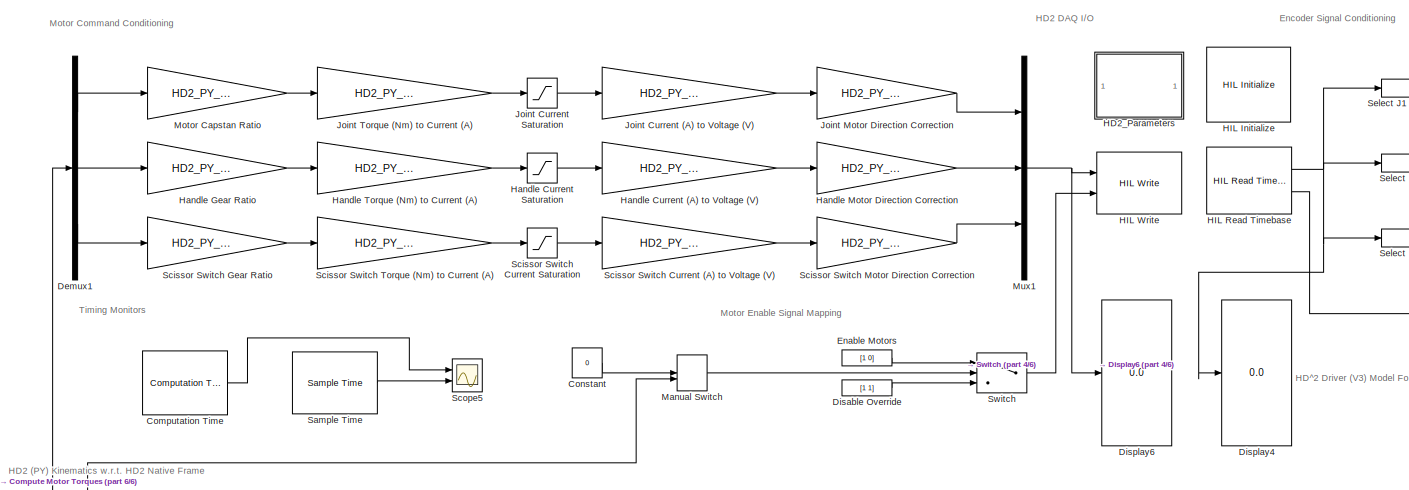
[diagram: root canvas - part 1/6, top left region]
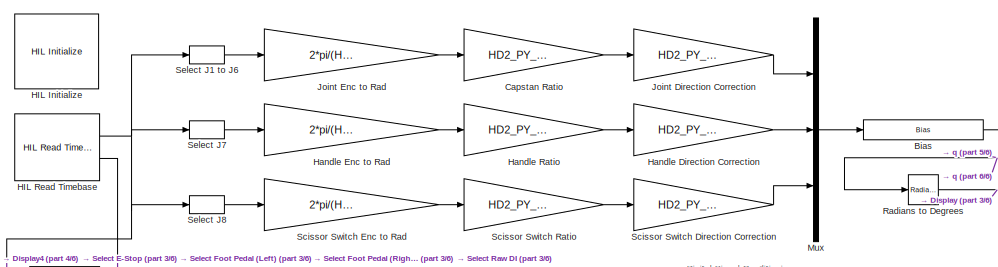
[diagram: root canvas - part 2/6, top right region]
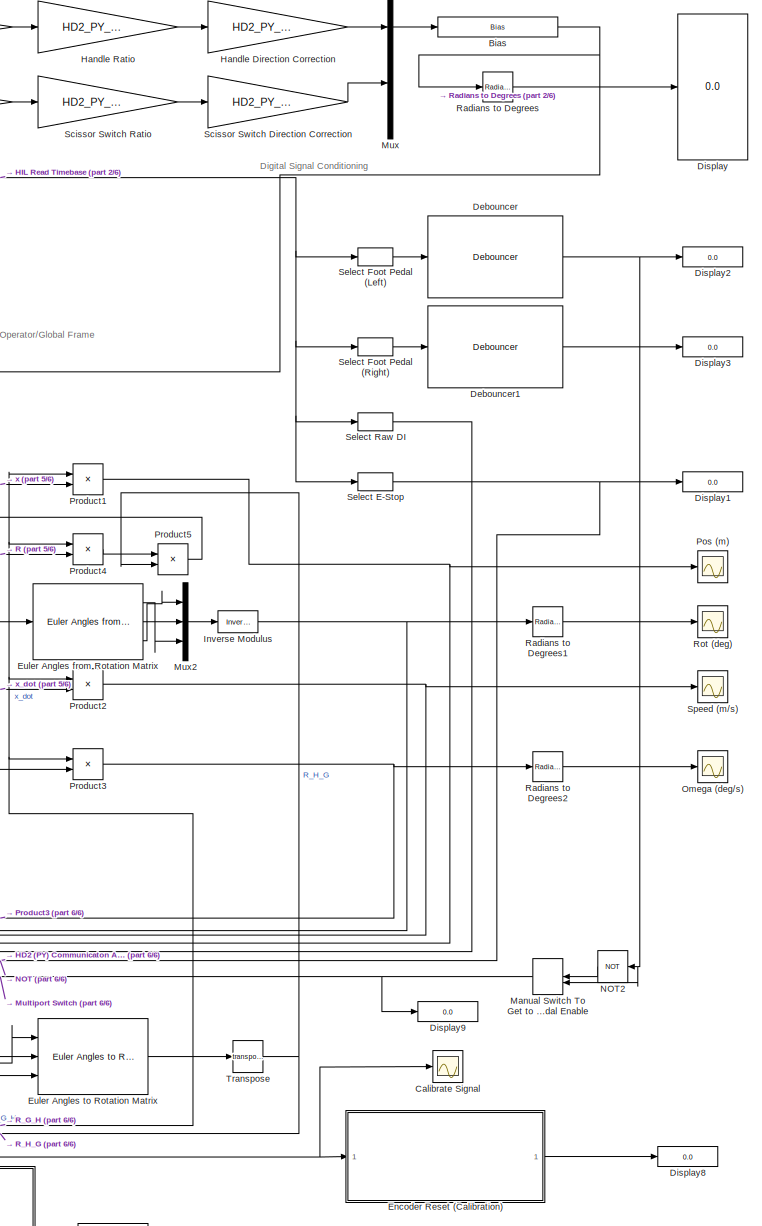
[diagram: root canvas - part 3/6, right side, full height]
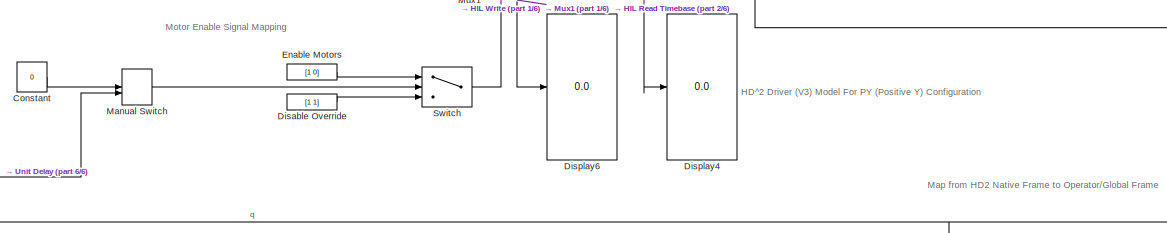
[diagram: root canvas - part 4/6, top center region]
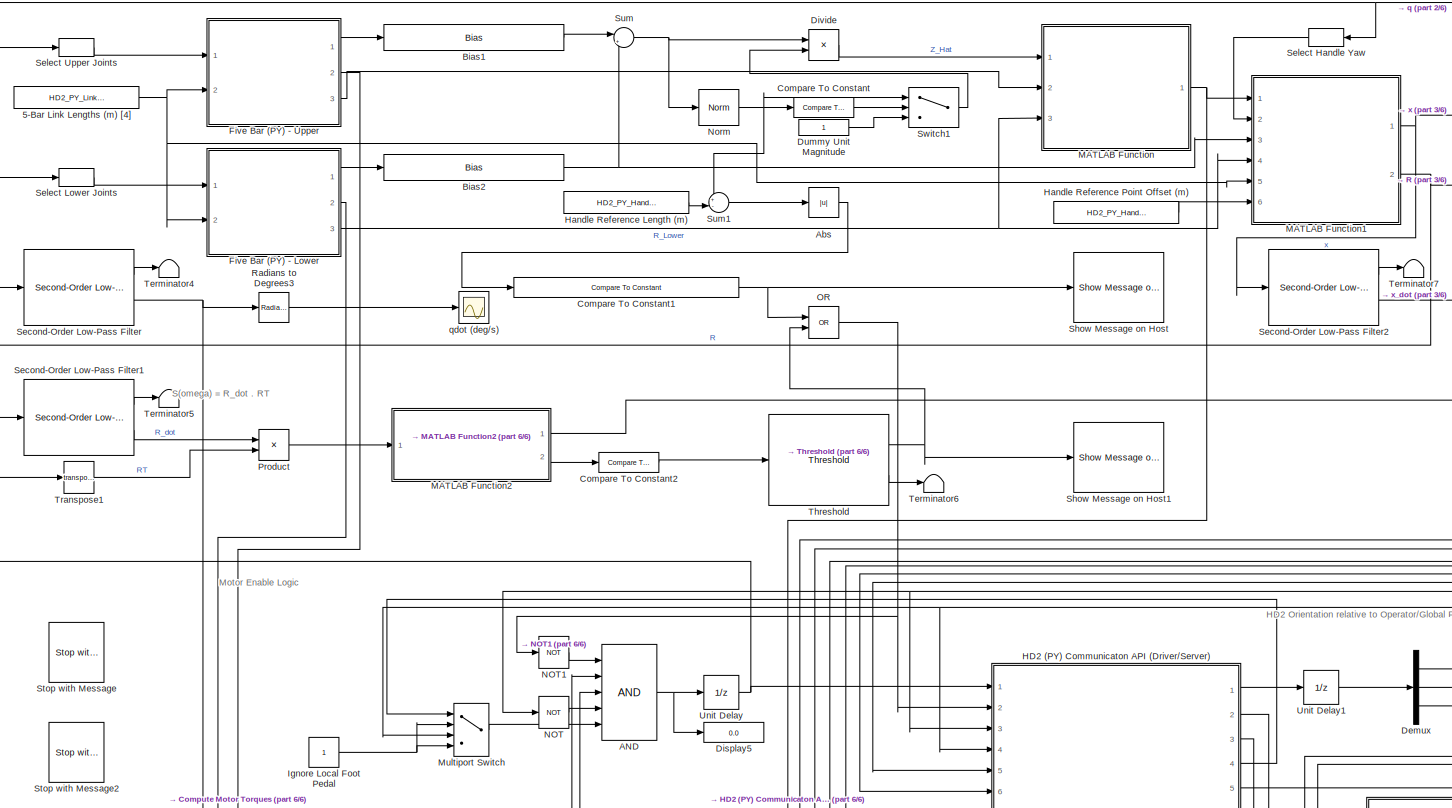
[diagram: root canvas - part 5/6, central region]
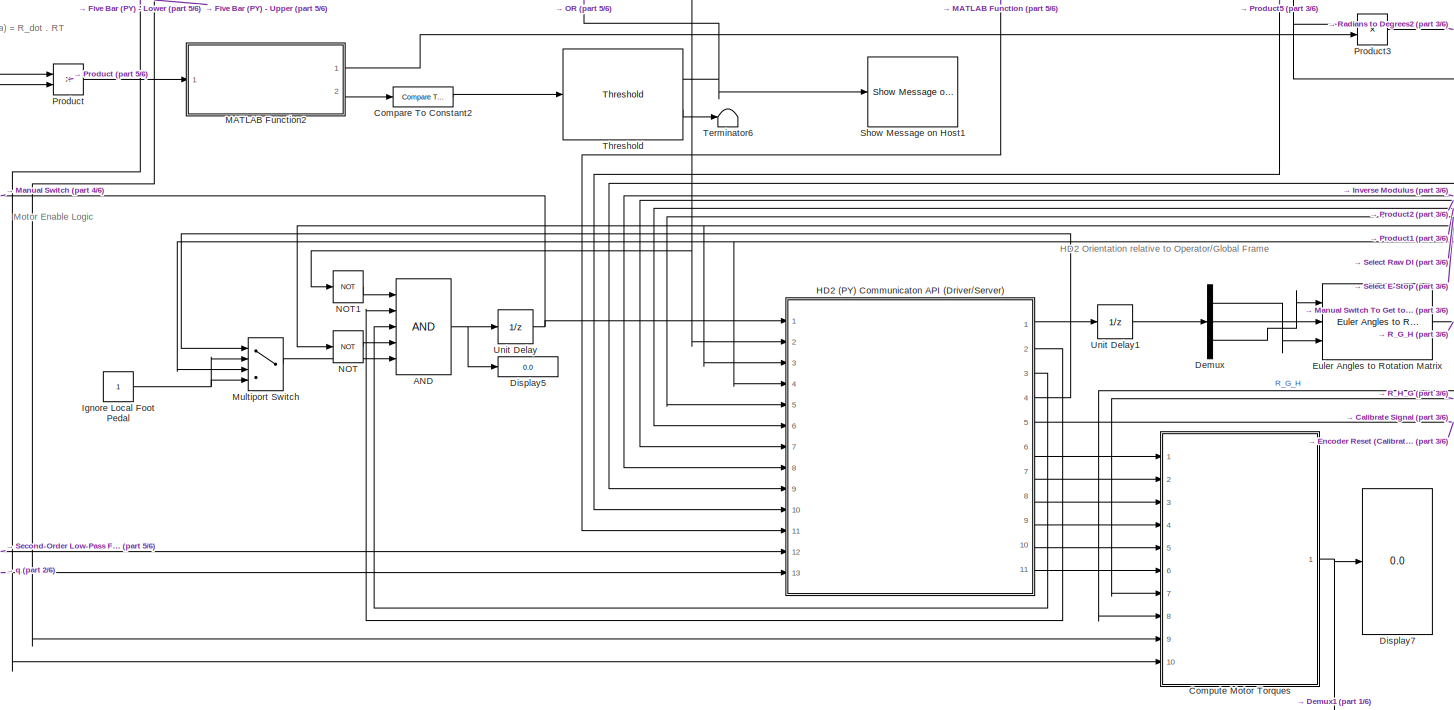
[diagram: root canvas - part 6/6, bottom center region]
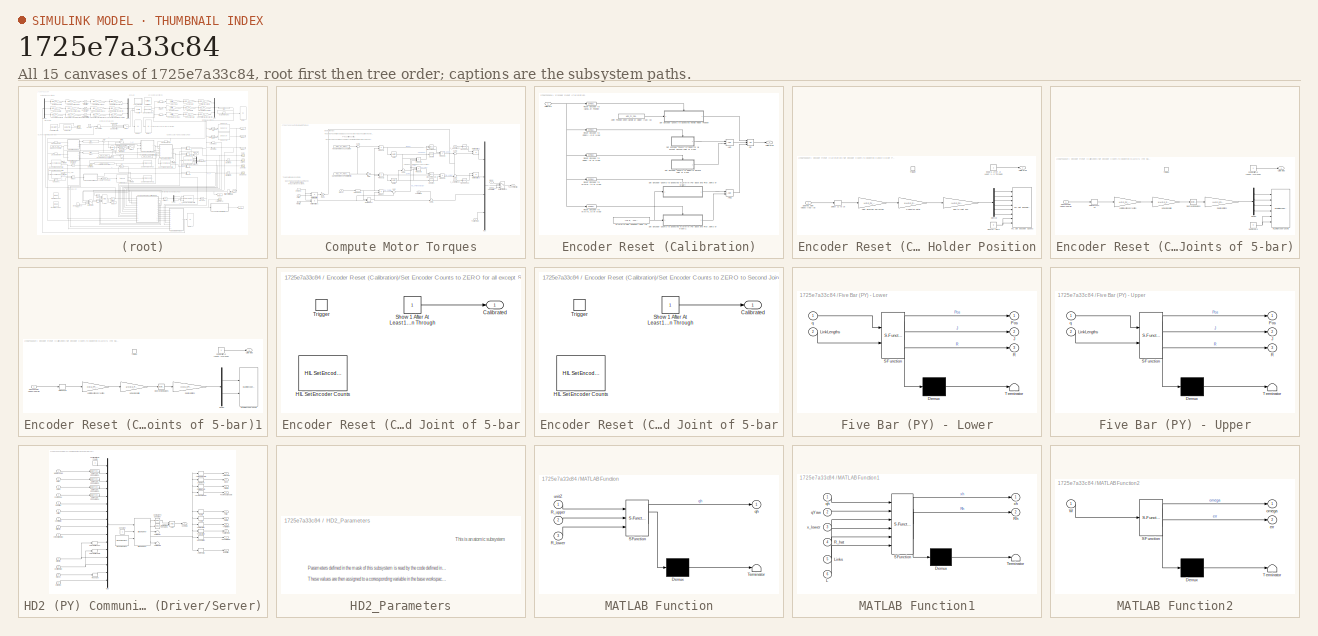
[diagram: thumbnail index - all 15 canvases of the model, root first then tree order]
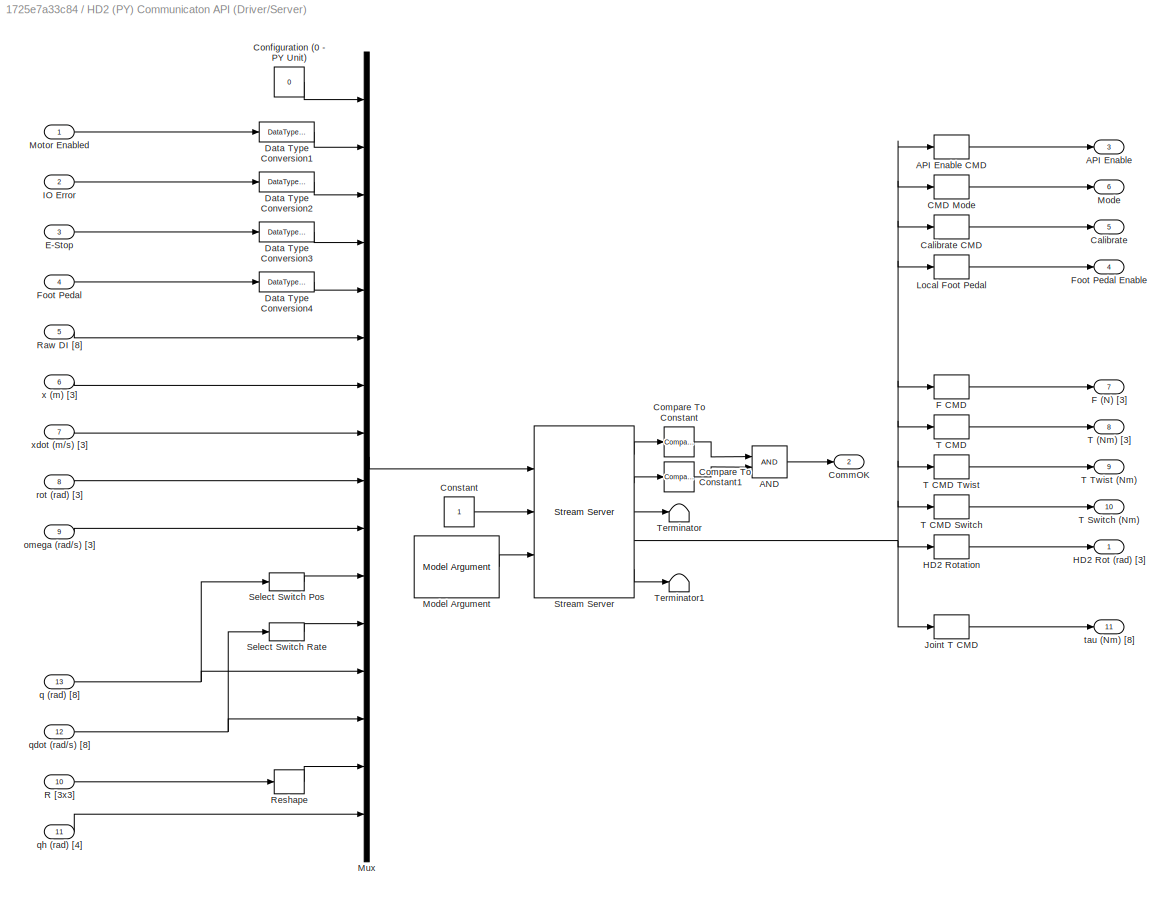
MODEL slx_1725e7a33c84
KIND model
CONFIG AbsTol = auto
CONFIG EnableMultiTasking = on
CONFIG FixedStep = 0.001
CONFIG InitFcn = % Assign block mask parameter to variable in base workspace\nmdlPrefix_hd2_py = 'HD2_PY_';\nmdlName_hd2_py = 'HD2_Driver_PY_v3';\nblkName_hd2_py = 'HD2_Parameters';\nblkRef_hd2_py = strcat(mdlName_hd2_py, '/', blkName_hd2_py);\n\n% Extract list of parameters defined in the "HD2 Parameter" subsystem block\ndialogParams_hd2_py = get_param( blkRef_hd2_py,'DialogParameters');\ndialogParamsNames_hd2_py = field...<+330ch>
CONFIG MaxStep = auto
CONFIG MinStep = auto
CONFIG RelTol = 1e-3
CONFIG SampleTimeConstraint = Unconstrained
CONFIG Solver = ode1
CONFIG SolverName = ode1
CONFIG StartTime = 0.0
CONFIG StopTime = inf
WORKSPACE source: MAT-file member
WORKSPACE MCOS: class17 (value not decoded)
BLOCK [Constant] 5-Bar Link Lengths (m) [4]
  Value = HD2_PY_LinkLengths
BLOCK [Logic] AND
  AllPortsSameDT = off
  IconShape = distinctive
  Inputs = 5
  OutDataTypeStr = boolean
  Ports = [5, 1]
BLOCK [Abs] Abs
  SaturateOnIntegerOverflow = off
BLOCK [Bias] Bias
  Bias = HD2_PY_CalibHome*0
  SaturateOnIntegerOverflow = off
BLOCK [Bias] Bias1
  Bias = [0, 0, HD2_PY_HandleLength/2]
  SaturateOnIntegerOverflow = off
BLOCK [Bias] Bias2
  Bias = [0, 0, -HD2_PY_HandleLength/2]
  SaturateOnIntegerOverflow = off
BLOCK [Scope] Calibrate Signal
  Floating = off
  NumInputPorts = 1
  Ports = [1]
  ScopeSpecificationString = Simulink.scopes.TimeScopeBlockCfg('CurrentConfiguration', extmgr.ConfigurationSet(extmgr.Configuration('Core','General UI',true),extmgr.Configuration('Core','Source UI',true),extmgr.Configuration('Sources','WiredSimulink',true,'DataLoggingVariableName','ScopeData1'),extmgr.Configuration('Visuals','Time Domain',true,'SerializedDisplays',{struct('MinYLimReal','-1.00000','MaxYLimReal','1.00000','YLab...<+1414ch>
BLOCK [Gain] Capstan Ratio
  Gain = HD2_PY_QGains(1)
BLOCK [Reference] Compare To Constant  REF=simulink/Logic and Bit
Operations/Compare
To Constant
  Ports = [1, 1]
  SourceBlock = simulink/Logic and Bit\nOperations/Compare\nTo Constant
  SourceProductBaseCode = SL
  SourceType = Compare To Constant
BLOCK [Reference] Compare To Constant1  REF=simulink/Logic and Bit
Operations/Compare
To Constant
  Ports = [1, 1]
  SourceBlock = simulink/Logic and Bit\nOperations/Compare\nTo Constant
  SourceProductBaseCode = SL
  SourceType = Compare To Constant
BLOCK [Reference] Compare To Constant2  REF=simulink/Logic and Bit
Operations/Compare
To Constant
  Ports = [1, 1]
  SourceBlock = simulink/Logic and Bit\nOperations/Compare\nTo Constant
  SourceProductBaseCode = SL
  SourceType = Compare To Constant
BLOCK [Reference] Computation Time  REF=quarc_library/Sources/Time/Computation Time
  Ports = [0, 1]
  SourceBlock = quarc_library/Sources/Time/Computation Time
  SourceProductName = QUARC Targets
  SourceType = Computation Time
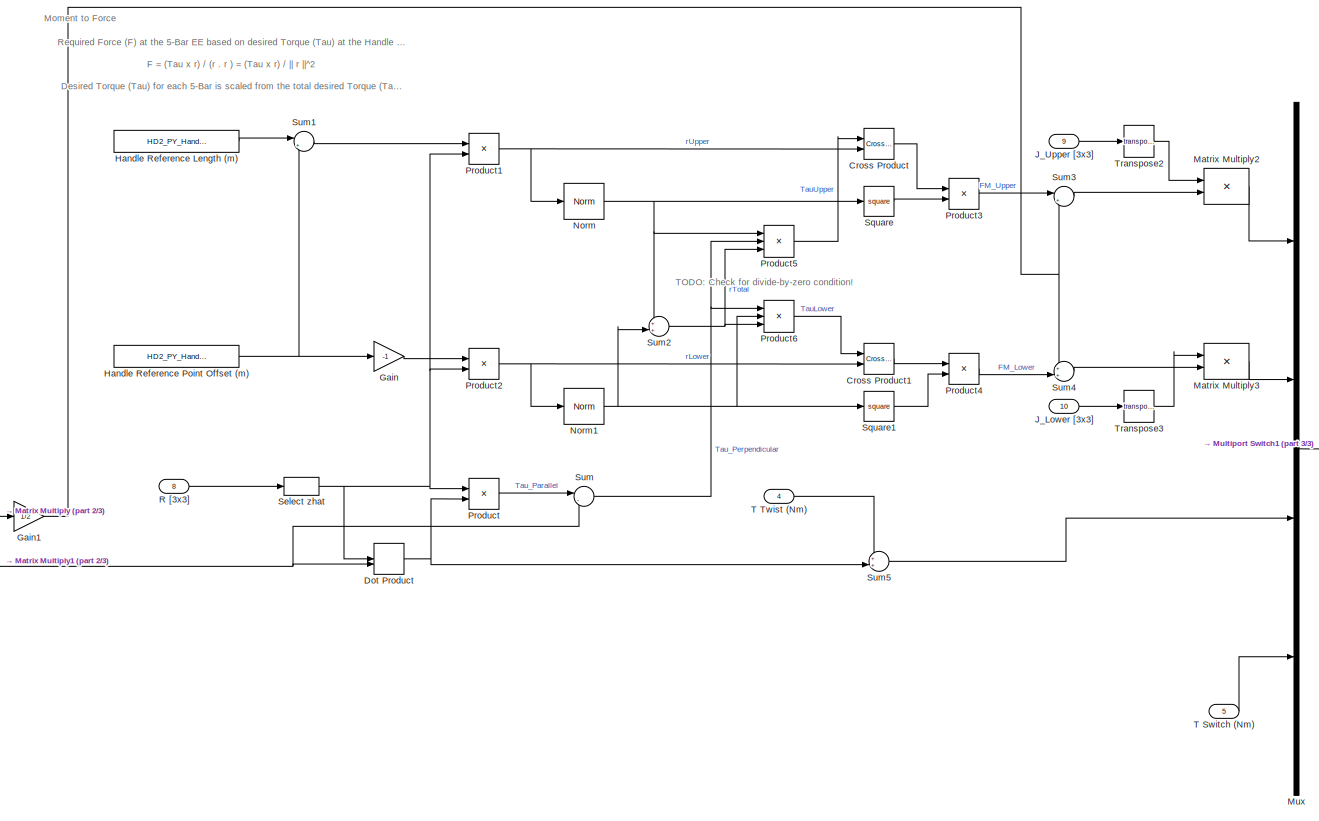
[diagram: Compute Motor Torques - part 1/3, center side, full height]
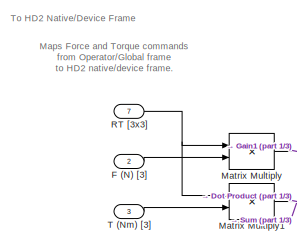
[diagram: Compute Motor Torques - part 2/3, middle left region]
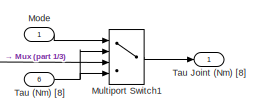
[diagram: Compute Motor Torques - part 3/3, middle right region]
BLOCK [SubSystem] Compute Motor Torques
  Ports = [10, 1]
  RequestExecContextInheritance = off
BLOCK [Reference] Compute Motor Torques/Cross Product  REF=quarc_library/Math Operations/Vectors/Cross Product
  Ports = [2, 1]
  SourceBlock = quarc_library/Math Operations/Vectors/Cross Product
  SourceProductName = QUARC Targets
  SourceType = Cross Product
BLOCK [Reference] Compute Motor Torques/Cross Product1  REF=quarc_library/Math Operations/Vectors/Cross Product
  Ports = [2, 1]
  SourceBlock = quarc_library/Math Operations/Vectors/Cross Product
  SourceProductName = QUARC Targets
  SourceType = Cross Product
BLOCK [DotProduct] Compute Motor Torques/Dot Product
  OutDataTypeStr = Inherit: Inherit via internal rule
BLOCK [Inport] Compute Motor Torques/F (N) [3]
  Port = 2
BLOCK [Gain] Compute Motor Torques/Gain
  Gain = -1
BLOCK [Gain] Compute Motor Torques/Gain1
  Gain = 1/2
BLOCK [Constant] Compute Motor Torques/Handle Reference Length (m)
  Value = HD2_PY_HandleLength
BLOCK [Constant] Compute Motor Torques/Handle Reference Point Offset (m)
  Value = HD2_PY_HandleOffset
BLOCK [Inport] Compute Motor Torques/J_Lower [3x3]
  Port = 10
BLOCK [Inport] Compute Motor Torques/J_Upper [3x3]
  Port = 9
BLOCK [Product] Compute Motor Torques/Matrix Multiply
  Multiplication = Matrix(*)
  Ports = [2, 1]
BLOCK [Product] Compute Motor Torques/Matrix Multiply1
  Multiplication = Matrix(*)
  Ports = [2, 1]
BLOCK [Product] Compute Motor Torques/Matrix Multiply2
  Multiplication = Matrix(*)
  Ports = [2, 1]
BLOCK [Product] Compute Motor Torques/Matrix Multiply3
  Multiplication = Matrix(*)
  Ports = [2, 1]
BLOCK [Inport] Compute Motor Torques/Mode
BLOCK [MultiPortSwitch] Compute Motor Torques/Multiport Switch1
  DataPortOrder = Zero-based contiguous
  DiagnosticForDefault = None
  InputSameDT = off
  Ports = [4, 1]
  SaturateOnIntegerOverflow = off
  zeroidx = on
BLOCK [Mux] Compute Motor Torques/Mux
  DisplayOption = bar
  Ports = [4, 1]
BLOCK [Reference] Compute Motor Torques/Norm  REF=quarc_library/Math Operations/Vectors/Norm
  Ports = [1, 1]
  SourceBlock = quarc_library/Math Operations/Vectors/Norm
  SourceProductName = QUARC Targets
  SourceType = Norm
BLOCK [Reference] Compute Motor Torques/Norm1  REF=quarc_library/Math Operations/Vectors/Norm
  Ports = [1, 1]
  SourceBlock = quarc_library/Math Operations/Vectors/Norm
  SourceProductName = QUARC Targets
  SourceType = Norm
BLOCK [Product] Compute Motor Torques/Product
  Ports = [2, 1]
BLOCK [Product] Compute Motor Torques/Product1
  Ports = [2, 1]
BLOCK [Product] Compute Motor Torques/Product2
  Ports = [2, 1]
BLOCK [Product] Compute Motor Torques/Product3
  Inputs = */
  Ports = [2, 1]
BLOCK [Product] Compute Motor Torques/Product4
  Inputs = */
  Ports = [2, 1]
BLOCK [Product] Compute Motor Torques/Product5
  Inputs = **/
  Ports = [3, 1]
BLOCK [Product] Compute Motor Torques/Product6
  Inputs = **/
  Ports = [3, 1]
BLOCK [Inport] Compute Motor Torques/R [3x3]
  Port = 8
BLOCK [Inport] Compute Motor Torques/RT [3x3]
  Port = 7
BLOCK [Selector] Compute Motor Torques/Select zhat
  IndexOptions = Index vector (dialog),Index vector (dialog)
  Indices = [1:3],3
  InputPortWidth = 3
  NumberOfDimensions = 2
  OutputSizes = 1,1
  Ports = [1, 1]
BLOCK [Math] Compute Motor Torques/Square
  Operator = square
  Ports = [1, 1]
BLOCK [Math] Compute Motor Torques/Square1
  Operator = square
  Ports = [1, 1]
BLOCK [Sum] Compute Motor Torques/Sum
  Inputs = |-+
  Ports = [2, 1]
BLOCK [Sum] Compute Motor Torques/Sum1
  Inputs = |+-
  Ports = [2, 1]
BLOCK [Sum] Compute Motor Torques/Sum2
  Inputs = ++|
  Ports = [2, 1]
BLOCK [Sum] Compute Motor Torques/Sum3
  Inputs = |++
  Ports = [2, 1]
BLOCK [Sum] Compute Motor Torques/Sum4
  Inputs = ++|
  Ports = [2, 1]
BLOCK [Sum] Compute Motor Torques/Sum5
  Inputs = ++|
  Ports = [2, 1]
BLOCK [Inport] Compute Motor Torques/T (Nm) [3]
  Port = 3
BLOCK [Inport] Compute Motor Torques/T Switch (Nm)
  Port = 5
BLOCK [Inport] Compute Motor Torques/T Twist (Nm)
  Port = 4
BLOCK [Inport] Compute Motor Torques/Tau (Nm) [8]
  Port = 6
BLOCK [Outport] Compute Motor Torques/Tau Joint (Nm) [8]
  VectorParamsAs1DForOutWhenUnconnected = off
BLOCK [Math] Compute Motor Torques/Transpose2
  Operator = transpose
  Ports = [1, 1]
BLOCK [Math] Compute Motor Torques/Transpose3
  Operator = transpose
  Ports = [1, 1]
BLOCK [Constant] Constant
  Value = 0
BLOCK [Reference] Debouncer  REF=quarc_library/Discontinuities/Debouncer
  Ports = [1, 1]
  SourceBlock = quarc_library/Discontinuities/Debouncer
  SourceProductName = QUARC Targets
  SourceType = De-bouncer
BLOCK [Reference] Debouncer1  REF=quarc_library/Discontinuities/Debouncer
  Ports = [1, 1]
  SourceBlock = quarc_library/Discontinuities/Debouncer
  SourceProductName = QUARC Targets
  SourceType = De-bouncer
BLOCK [Demux] Demux
  Outputs = 3
  Ports = [1, 3]
BLOCK [Demux] Demux1
  Outputs = [6 1 1]
  Ports = [1, 3]
BLOCK [Constant] Disable Override
  Value = [1 1]
BLOCK [Display] Display
  Decimation = 100
  Ports = [1]
BLOCK [Display] Display1
  Decimation = 100
  Ports = [1]
BLOCK [Display] Display2
  Decimation = 100
  Ports = [1]
BLOCK [Display] Display3
  Decimation = 100
  Ports = [1]
BLOCK [Display] Display4
  Decimation = 100
  Ports = [1]
BLOCK [Display] Display5
  Decimation = 100
  Ports = [1]
BLOCK [Display] Display6
  Decimation = 100
  Ports = [1]
BLOCK [Display] Display7
  Decimation = 100
  Ports = [1]
BLOCK [Display] Display8
  Decimation = 100
  Ports = [1]
BLOCK [Display] Display9
  Decimation = 100
  Ports = [1]
BLOCK [Product] Divide
  Inputs = */
  Ports = [2, 1]
BLOCK [Constant] Dummy Unit Magnitude
BLOCK [Constant] Enable Motors
  Value = [1 0]
BLOCK [SubSystem] Encoder Reset (Calibration)
  Ports = [1, 1]
  RequestExecContextInheritance = off
BLOCK [Logic] Encoder Reset (Calibration)/AND
  AllPortsSameDT = off
  IconShape = distinctive
  OutDataTypeStr = boolean
  Ports = [2, 1]
BLOCK [Logic] Encoder Reset (Calibration)/AND1
  AllPortsSameDT = off
  IconShape = distinctive
  OutDataTypeStr = boolean
  Ports = [2, 1]
BLOCK [Inport] Encoder Reset (Calibration)/Calibrate
BLOCK [Outport] Encoder Reset (Calibration)/Calibrated
  VectorParamsAs1DForOutWhenUnconnected = off
BLOCK [Constant] Encoder Reset (Calibration)/Joint Position when Handle at Holder (rad) [8]
  Value = HD2_PY_CalibHome
BLOCK [Constant] Encoder Reset (Calibration)/MAX//MIN Joint Positions (deg) [8]
  Value = [41.5, -111, 111, 41.5, -111, 111, 0, 0]
BLOCK [Logic] Encoder Reset (Calibration)/OR
  AllPortsSameDT = off
  IconShape = distinctive
  Inputs = 3
  Operator = OR
  OutDataTypeStr = boolean
  Ports = [3, 1]
BLOCK [Reference] Encoder Reset (Calibration)/Reset Encoder to Handle Holder Position  REF=simulink/Logic and Bit
Operations/Compare
To Constant
  Ports = [1, 1]
  SourceBlock = simulink/Logic and Bit\nOperations/Compare\nTo Constant
  SourceProductBaseCode = SL
  SourceType = Compare To Constant
BLOCK [Reference] Encoder Reset (Calibration)/Reset Encoder to MAX reference position For Second joints of 5-bar  REF=simulink/Logic and Bit
Operations/Compare
To Constant
  Ports = [1, 1]
  SourceBlock = simulink/Logic and Bit\nOperations/Compare\nTo Constant
  SourceProductBaseCode = SL
  SourceType = Compare To Constant
BLOCK [Reference] Encoder Reset (Calibration)/Reset Encoder to MAX//MIN reference position For Base and First joints of 5-bar  REF=simulink/Logic and Bit
Operations/Compare
To Constant
  Ports = [1, 1]
  SourceBlock = simulink/Logic and Bit\nOperations/Compare\nTo Constant
  SourceProductBaseCode = SL
  SourceType = Compare To Constant
BLOCK [Reference] Encoder Reset (Calibration)/Reset Encoder to ZERO reference position For ALL joints except Second of 5-bar  REF=simulink/Logic and Bit
Operations/Compare
To Constant
  Ports = [1, 1]
  SourceBlock = simulink/Logic and Bit\nOperations/Compare\nTo Constant
  SourceProductBaseCode = SL
  SourceType = Compare To Constant
BLOCK [Reference] Encoder Reset (Calibration)/Reset Encoder to ZERO reference position For Second Joint of 5-bar  REF=simulink/Logic and Bit
Operations/Compare
To Constant
  Ports = [1, 1]
  SourceBlock = simulink/Logic and Bit\nOperations/Compare\nTo Constant
  SourceProductBaseCode = SL
  SourceType = Compare To Constant
BLOCK [SubSystem] Encoder Reset (Calibration)/Set Encoder Counts to Expected Handle Holder Position
  Ports = [1, 1, 0, 1]
  RequestExecContextInheritance = off
  TreatAsAtomicUnit = on
BLOCK [Gain] Encoder Reset (Calibration)/Set Encoder Counts to Expected Handle Holder Position/1//Capstan Ratio
  Gain = 1/HD2_PY_QGains(1)
BLOCK [Outport] Encoder Reset (Calibration)/Set Encoder Counts to Expected Handle Holder Position/Calibrated
  InitialOutput = [0]
  VectorParamsAs1DForOutWhenUnconnected = off
BLOCK [Demux] Encoder Reset (Calibration)/Set Encoder Counts to Expected Handle Holder Position/Demux
  Outputs = 6
  Ports = [1, 6]
BLOCK [Inport] Encoder Reset (Calibration)/Set Encoder Counts to Expected Handle Holder Position/Desired Joint Values (rad) [8]
BLOCK [Constant] Encoder Reset (Calibration)/Set Encoder Counts to Expected Handle Holder Position/Dummy Zero
  Value = 0
BLOCK [Reference] Encoder Reset (Calibration)/Set Encoder Counts to Expected Handle Holder Position/HIL Set Encoder Counts  REF=quarc_library/Data Acquisition/Generic/Configuration/HIL Set Encoder Counts
  AttributesFormatString = (%<object_name>)
  Ports = [8]
  SourceBlock = quarc_library/Data Acquisition/Generic/Configuration/HIL Set Encoder Counts
  SourceProductName = QUARC Targets
  SourceType = HIL Set Encoder Counts
  UserDataPersistent = on
BLOCK [Gain] Encoder Reset (Calibration)/Set Encoder Counts to Expected Handle Holder Position/Joint Direction Correction
  Gain = HD2_PY_QDirs(1)
BLOCK [Gain] Encoder Reset (Calibration)/Set Encoder Counts to Expected Handle Holder Position/Rad to Joint Enc
  Gain = (HD2_PY_QEnc(1)*4)/(2*pi)
BLOCK [Selector] Encoder Reset (Calibration)/Set Encoder Counts to Expected Handle Holder Position/Select J1 to J6
  IndexOptions = Index vector (dialog)
  Indices = [1:6]
  InputPortWidth = 8
  OutputSizes = 1
  Ports = [1, 1]
BLOCK [Constant] Encoder Reset (Calibration)/Set Encoder Counts to Expected Handle Holder Position/Show 1 After At Least 1 Execution Through
BLOCK [TriggerPort] Encoder Reset (Calibration)/Set Encoder Counts to Expected Handle Holder Position/Trigger
  Ports = []
  StatesWhenEnabling = held
  VariantControl = Variant
BLOCK [SubSystem] Encoder Reset (Calibration)/Set Encoder Counts to Expected MAX//MIN (For Base and First Joints of 5-bar)
  Ports = [1, 1, 0, 1]
  RequestExecContextInheritance = off
  TreatAsAtomicUnit = on
BLOCK [Gain] Encoder Reset (Calibration)/Set Encoder Counts to Expected MAX//MIN (For Base and First Joints of 5-bar)/1//Capstan Ratio
  Gain = 1/HD2_PY_QGains(1)
BLOCK [Outport] Encoder Reset (Calibration)/Set Encoder Counts to Expected MAX//MIN (For Base and First Joints of 5-bar)/Calibrated
  InitialOutput = [0]
  VectorParamsAs1DForOutWhenUnconnected = off
BLOCK [Reference] Encoder Reset (Calibration)/Set Encoder Counts to Expected MAX//MIN (For Base and First Joints of 5-bar)/Degrees to Radians  REF=simulink_extras/Transformations/Degrees to
Radians
  Ports = [1, 1]
  SourceBlock = simulink_extras/Transformations/Degrees to\nRadians
  SourceProductBaseCode = SL
  SourceType = DegreesToRadians
BLOCK [Demux] Encoder Reset (Calibration)/Set Encoder Counts to Expected MAX//MIN (For Base and First Joints of 5-bar)/Demux
  Ports = [1, 4]
BLOCK [Inport] Encoder Reset (Calibration)/Set Encoder Counts to Expected MAX//MIN (For Base and First Joints of 5-bar)/Desired Joint Values (deg) [8]
BLOCK [Constant] Encoder Reset (Calibration)/Set Encoder Counts to Expected MAX//MIN (For Base and First Joints of 5-bar)/Dummy Zero
  Value = 0
BLOCK [Reference] Encoder Reset (Calibration)/Set Encoder Counts to Expected MAX//MIN (For Base and First Joints of 5-bar)/HIL Set Encoder Counts  REF=quarc_library/Data Acquisition/Generic/Configuration/HIL Set Encoder Counts
  AttributesFormatString = (%<object_name>)
  Ports = [6]
  SourceBlock = quarc_library/Data Acquisition/Generic/Configuration/HIL Set Encoder Counts
  SourceProductName = QUARC Targets
  SourceType = HIL Set Encoder Counts
  UserDataPersistent = on
BLOCK [Gain] Encoder Reset (Calibration)/Set Encoder Counts to Expected MAX//MIN (For Base and First Joints of 5-bar)/Joint Direction Correction
  Gain = HD2_PY_QDirs(1)
BLOCK [Gain] Encoder Reset (Calibration)/Set Encoder Counts to Expected MAX//MIN (For Base and First Joints of 5-bar)/Rad to Joint Enc
  Gain = (HD2_PY_QEnc(1)*4)/(2*pi)
BLOCK [Selector] Encoder Reset (Calibration)/Set Encoder Counts to Expected MAX//MIN (For Base and First Joints of 5-bar)/Select J1, J2, J4, J5
  IndexOptions = Index vector (dialog)
  Indices = [1,2,4,5]
  InputPortWidth = 8
  OutputSizes = 1
  Ports = [1, 1]
BLOCK [Constant] Encoder Reset (Calibration)/Set Encoder Counts to Expected MAX//MIN (For Base and First Joints of 5-bar)/Show 1 After At Least 1 Execution Through
BLOCK [TriggerPort] Encoder Reset (Calibration)/Set Encoder Counts to Expected MAX//MIN (For Base and First Joints of 5-bar)/Trigger
  Ports = []
  StatesWhenEnabling = held
  VariantControl = Variant
BLOCK [SubSystem] Encoder Reset (Calibration)/Set Encoder Counts to Expected MAX//MIN (For Base and First Joints of 5-bar)1
  Ports = [1, 1, 0, 1]
  RequestExecContextInheritance = off
  TreatAsAtomicUnit = on
BLOCK [Gain] Encoder Reset (Calibration)/Set Encoder Counts to Expected MAX//MIN (For Base and First Joints of 5-bar)1/1//Capstan Ratio
  Gain = 1/HD2_PY_QGains(1)
BLOCK [Outport] Encoder Reset (Calibration)/Set Encoder Counts to Expected MAX//MIN (For Base and First Joints of 5-bar)1/Calibrated
  InitialOutput = [0]
  VectorParamsAs1DForOutWhenUnconnected = off
BLOCK [Reference] Encoder Reset (Calibration)/Set Encoder Counts to Expected MAX//MIN (For Base and First Joints of 5-bar)1/Degrees to Radians  REF=simulink_extras/Transformations/Degrees to
Radians
  Ports = [1, 1]
  SourceBlock = simulink_extras/Transformations/Degrees to\nRadians
  SourceProductBaseCode = SL
  SourceType = DegreesToRadians
BLOCK [Demux] Encoder Reset (Calibration)/Set Encoder Counts to Expected MAX//MIN (For Base and First Joints of 5-bar)1/Demux
  Outputs = 2
  Ports = [1, 2]
BLOCK [Inport] Encoder Reset (Calibration)/Set Encoder Counts to Expected MAX//MIN (For Base and First Joints of 5-bar)1/Desired Joint Values (deg) [8]
BLOCK [Reference] Encoder Reset (Calibration)/Set Encoder Counts to Expected MAX//MIN (For Base and First Joints of 5-bar)1/HIL Set Encoder Counts  REF=quarc_library/Data Acquisition/Generic/Configuration/HIL Set Encoder Counts
  AttributesFormatString = (%<object_name>)
  Ports = [2]
  SourceBlock = quarc_library/Data Acquisition/Generic/Configuration/HIL Set Encoder Counts
  SourceProductName = QUARC Targets
  SourceType = HIL Set Encoder Counts
  UserDataPersistent = on
BLOCK [Gain] Encoder Reset (Calibration)/Set Encoder Counts to Expected MAX//MIN (For Base and First Joints of 5-bar)1/Joint Direction Correction
  Gain = HD2_PY_QDirs(1)
BLOCK [Gain] Encoder Reset (Calibration)/Set Encoder Counts to Expected MAX//MIN (For Base and First Joints of 5-bar)1/Rad to Joint Enc
  Gain = (HD2_PY_QEnc(1)*4)/(2*pi)
BLOCK [Selector] Encoder Reset (Calibration)/Set Encoder Counts to Expected MAX//MIN (For Base and First Joints of 5-bar)1/Select J3, J6
  IndexOptions = Index vector (dialog)
  Indices = [3,6]
  InputPortWidth = 8
  OutputSizes = 1
  Ports = [1, 1]
BLOCK [Constant] Encoder Reset (Calibration)/Set Encoder Counts to Expected MAX//MIN (For Base and First Joints of 5-bar)1/Show 1 After At Least 1 Execution Through
BLOCK [TriggerPort] Encoder Reset (Calibration)/Set Encoder Counts to Expected MAX//MIN (For Base and First Joints of 5-bar)1/Trigger
  Ports = []
  StatesWhenEnabling = held
  VariantControl = Variant
BLOCK [SubSystem] Encoder Reset (Calibration)/Set Encoder Counts to ZERO for all except Second Joint of 5-bar
  Ports = [0, 1, 0, 1]
  RequestExecContextInheritance = off
  TreatAsAtomicUnit = on
BLOCK [Outport] Encoder Reset (Calibration)/Set Encoder Counts to ZERO for all except Second Joint of 5-bar/Calibrated
  InitialOutput = [0]
  VectorParamsAs1DForOutWhenUnconnected = off
BLOCK [Reference] Encoder Reset (Calibration)/Set Encoder Counts to ZERO for all except Second Joint of 5-bar/HIL Set Encoder Counts  REF=quarc_library/Data Acquisition/Generic/Configuration/HIL Set Encoder Counts
  AttributesFormatString = (%<object_name>)
  Ports = []
  SourceBlock = quarc_library/Data Acquisition/Generic/Configuration/HIL Set Encoder Counts
  SourceProductName = QUARC Targets
  SourceType = HIL Set Encoder Counts
  UserDataPersistent = on
BLOCK [Constant] Encoder Reset (Calibration)/Set Encoder Counts to ZERO for all except Second Joint of 5-bar/Show 1 After At Least 1 Execution Through
BLOCK [TriggerPort] Encoder Reset (Calibration)/Set Encoder Counts to ZERO for all except Second Joint of 5-bar/Trigger
  Ports = []
  StatesWhenEnabling = held
  VariantControl = Variant
BLOCK [SubSystem] Encoder Reset (Calibration)/Set Encoder Counts to ZERO to Second Joint of 5-bar
  Ports = [0, 1, 0, 1]
  RequestExecContextInheritance = off
  TreatAsAtomicUnit = on
BLOCK [Outport] Encoder Reset (Calibration)/Set Encoder Counts to ZERO to Second Joint of 5-bar/Calibrated
  InitialOutput = [0]
  VectorParamsAs1DForOutWhenUnconnected = off
BLOCK [Reference] Encoder Reset (Calibration)/Set Encoder Counts to ZERO to Second Joint of 5-bar/HIL Set Encoder Counts  REF=quarc_library/Data Acquisition/Generic/Configuration/HIL Set Encoder Counts
  AttributesFormatString = (%<object_name>)
  Ports = []
  SourceBlock = quarc_library/Data Acquisition/Generic/Configuration/HIL Set Encoder Counts
  SourceProductName = QUARC Targets
  SourceType = HIL Set Encoder Counts
  UserDataPersistent = on
BLOCK [Constant] Encoder Reset (Calibration)/Set Encoder Counts to ZERO to Second Joint of 5-bar/Show 1 After At Least 1 Execution Through
BLOCK [TriggerPort] Encoder Reset (Calibration)/Set Encoder Counts to ZERO to Second Joint of 5-bar/Trigger
  Ports = []
  StatesWhenEnabling = held
  VariantControl = Variant
BLOCK [Reference] Euler Angles from Rotation Matrix  REF=quarc_library/Math Operations/Matrices/Euler Angles from
Rotation Matrix
  Ports = [1, 3]
  SourceBlock = quarc_library/Math Operations/Matrices/Euler Angles from\nRotation Matrix
  SourceProductName = QUARC Targets
  SourceType = Euler Angles from Rotation Matrix
BLOCK [Reference] Euler Angles to Rotation Matrix  REF=quarc_library/Math Operations/Matrices/Euler Angles to
Rotation Matrix
  Ports = [3, 1]
  SourceBlock = quarc_library/Math Operations/Matrices/Euler Angles to\nRotation Matrix
  SourceProductName = QUARC Targets
  SourceType = Euler Angles to Rotation Matrix
BLOCK [SubSystem] Five Bar (PY) - Lower
  ErrorFcn = Stateflow.Translate.translate
  PermitHierarchicalResolution = ExplicitOnly
  Ports = [2, 3]
  RequestExecContextInheritance = off
  SFBlockType = MATLAB Function
  TreatAsAtomicUnit = on
BLOCK [Demux] Five Bar (PY) - Lower/ Demux 
  Outputs = 1
  Ports = [1, 1]
BLOCK [S-Function] Five Bar (PY) - Lower/ SFunction 
  EnableBusSupport = off
  FunctionName = sf_sfun
  PortCounts = [2 4]
  Ports = [2, 4]
  SFcnIsStateOwnerBlock = off
  SFunctionDeploymentMode = off
  Tag = Stateflow S-Function HD2_Driver_PY_v3 1
BLOCK [Terminator] Five Bar (PY) - Lower/ Terminator 
BLOCK [Outport] Five Bar (PY) - Lower/J
  Port = 2
  VectorParamsAs1DForOutWhenUnconnected = off
BLOCK [Inport] Five Bar (PY) - Lower/LinkLengths
  Port = 2
BLOCK [Outport] Five Bar (PY) - Lower/Pos
  VectorParamsAs1DForOutWhenUnconnected = off
BLOCK [Outport] Five Bar (PY) - Lower/R
  Port = 3
  VectorParamsAs1DForOutWhenUnconnected = off
BLOCK [Inport] Five Bar (PY) - Lower/q
BLOCK [SubSystem] Five Bar (PY) - Upper
  ErrorFcn = Stateflow.Translate.translate
  PermitHierarchicalResolution = ExplicitOnly
  Ports = [2, 3]
  RequestExecContextInheritance = off
  SFBlockType = MATLAB Function
  TreatAsAtomicUnit = on
BLOCK [Demux] Five Bar (PY) - Upper/ Demux 
  Outputs = 1
  Ports = [1, 1]
BLOCK [S-Function] Five Bar (PY) - Upper/ SFunction 
  EnableBusSupport = off
  FunctionName = sf_sfun
  PortCounts = [2 4]
  Ports = [2, 4]
  SFcnIsStateOwnerBlock = off
  SFunctionDeploymentMode = off
  Tag = Stateflow S-Function HD2_Driver_PY_v3 2
BLOCK [Terminator] Five Bar (PY) - Upper/ Terminator 
BLOCK [Outport] Five Bar (PY) - Upper/J
  Port = 2
  VectorParamsAs1DForOutWhenUnconnected = off
BLOCK [Inport] Five Bar (PY) - Upper/LinkLengths
  Port = 2
BLOCK [Outport] Five Bar (PY) - Upper/Pos
  VectorParamsAs1DForOutWhenUnconnected = off
BLOCK [Outport] Five Bar (PY) - Upper/R
  Port = 3
  VectorParamsAs1DForOutWhenUnconnected = off
BLOCK [Inport] Five Bar (PY) - Upper/q
BLOCK [SubSystem] HD2 (PY) Communicaton API (Driver//Server)
  Ports = [13, 11]
  RequestExecContextInheritance = off
BLOCK [Logic] HD2 (PY) Communicaton API (Driver//Server)/AND
  AllPortsSameDT = off
  IconShape = distinctive
  OutDataTypeStr = boolean
  Ports = [2, 1]
BLOCK [Outport] HD2 (PY) Communicaton API (Driver//Server)/API Enable
  Port = 3
  VectorParamsAs1DForOutWhenUnconnected = off
BLOCK [Selector] HD2 (PY) Communicaton API (Driver//Server)/API Enable CMD
  IndexOptions = Index vector (dialog)
  Indices = [1]
  InputPortWidth = 23
  OutputSizes = 1
  Ports = [1, 1]
BLOCK [Selector] HD2 (PY) Communicaton API (Driver//Server)/CMD Mode
  IndexOptions = Index vector (dialog)
  Indices = [2]
  InputPortWidth = 23
  OutputSizes = 1
  Ports = [1, 1]
BLOCK [Outport] HD2 (PY) Communicaton API (Driver//Server)/Calibrate
  Port = 5
  VectorParamsAs1DForOutWhenUnconnected = off
BLOCK [Selector] HD2 (PY) Communicaton API (Driver//Server)/Calibrate CMD
  IndexOptions = Index vector (dialog)
  Indices = [3]
  InputPortWidth = 23
  OutputSizes = 1
  Ports = [1, 1]
BLOCK [Outport] HD2 (PY) Communicaton API (Driver//Server)/CommOK
  Port = 2
  VectorParamsAs1DForOutWhenUnconnected = off
BLOCK [Reference] HD2 (PY) Communicaton API (Driver//Server)/Compare To Constant  REF=simulink/Logic and Bit
Operations/Compare
To Constant
  Ports = [1, 1]
  SourceBlock = simulink/Logic and Bit\nOperations/Compare\nTo Constant
  SourceProductBaseCode = SL
  SourceType = Compare To Constant
BLOCK [Reference] HD2 (PY) Communicaton API (Driver//Server)/Compare To Constant1  REF=simulink/Logic and Bit
Operations/Compare
To Constant
  Ports = [1, 1]
  SourceBlock = simulink/Logic and Bit\nOperations/Compare\nTo Constant
  SourceProductBaseCode = SL
  SourceType = Compare To Constant
BLOCK [Constant] HD2 (PY) Communicaton API (Driver//Server)/Configuration (0 - PY Unit)
  Value = 0
BLOCK [Constant] HD2 (PY) Communicaton API (Driver//Server)/Constant
BLOCK [DataTypeConversion] HD2 (PY) Communicaton API (Driver//Server)/Data Type Conversion1
  OutDataTypeStr = double
  RndMeth = Floor
  SaturateOnIntegerOverflow = off
BLOCK [DataTypeConversion] HD2 (PY) Communicaton API (Driver//Server)/Data Type Conversion2
  OutDataTypeStr = double
  RndMeth = Floor
  SaturateOnIntegerOverflow = off
BLOCK [DataTypeConversion] HD2 (PY) Communicaton API (Driver//Server)/Data Type Conversion3
  OutDataTypeStr = double
  RndMeth = Floor
  SaturateOnIntegerOverflow = off
BLOCK [DataTypeConversion] HD2 (PY) Communicaton API (Driver//Server)/Data Type Conversion4
  OutDataTypeStr = double
  RndMeth = Floor
  SaturateOnIntegerOverflow = off
BLOCK [Inport] HD2 (PY) Communicaton API (Driver//Server)/E-Stop
  Port = 3
BLOCK [Outport] HD2 (PY) Communicaton API (Driver//Server)/F (N) [3]
  Port = 7
  VectorParamsAs1DForOutWhenUnconnected = off
BLOCK [Selector] HD2 (PY) Communicaton API (Driver//Server)/F CMD
  IndexOptions = Index vector (dialog)
  Indices = [5:7]
  InputPortWidth = 23
  OutputSizes = 1
  Ports = [1, 1]
BLOCK [Inport] HD2 (PY) Communicaton API (Driver//Server)/Foot Pedal
  Port = 4
BLOCK [Outport] HD2 (PY) Communicaton API (Driver//Server)/Foot Pedal Enable
  Port = 4
  VectorParamsAs1DForOutWhenUnconnected = off
BLOCK [Outport] HD2 (PY) Communicaton API (Driver//Server)/HD2 Rot (rad) [3]
  VectorParamsAs1DForOutWhenUnconnected = off
BLOCK [Selector] HD2 (PY) Communicaton API (Driver//Server)/HD2 Rotation
  IndexOptions = Index vector (dialog)
  Indices = [13:15]
  InputPortWidth = 23
  OutputSizes = 1
  Ports = [1, 1]
BLOCK [Inport] HD2 (PY) Communicaton API (Driver//Server)/IO Error
  Port = 2
BLOCK [Selector] HD2 (PY) Communicaton API (Driver//Server)/Joint T CMD
  IndexOptions = Index vector (dialog)
  Indices = [16:23]
  InputPortWidth = 23
  OutputSizes = 1
  Ports = [1, 1]
BLOCK [Selector] HD2 (PY) Communicaton API (Driver//Server)/Local Foot Pedal
  IndexOptions = Index vector (dialog)
  Indices = [4]
  InputPortWidth = 23
  OutputSizes = 1
  Ports = [1, 1]
BLOCK [Outport] HD2 (PY) Communicaton API (Driver//Server)/Mode
  Port = 6
  VectorParamsAs1DForOutWhenUnconnected = off
BLOCK [Reference] HD2 (PY) Communicaton API (Driver//Server)/Model Argument  REF=quarc_library/Sources/Signals/Model Argument
  AttributesFormatString = (-%<argument_name>)
  Ports = [0, 1]
  SourceBlock = quarc_library/Sources/Signals/Model Argument
  SourceProductName = QUARC Targets
  SourceType = Model Argument
BLOCK [Inport] HD2 (PY) Communicaton API (Driver//Server)/Motor Enabled
BLOCK [Mux] HD2 (PY) Communicaton API (Driver//Server)/Mux
  DisplayOption = bar
  Inputs = [1 1 1 1 1 8 3 3 3 3 1 1 8 8 9 4]
  Ports = [16, 1]
BLOCK [Inport] HD2 (PY) Communicaton API (Driver//Server)/R [3x3]
  Port = 10
BLOCK [Inport] HD2 (PY) Communicaton API (Driver//Server)/Raw DI [8]
  Port = 5
BLOCK [Reshape] HD2 (PY) Communicaton API (Driver//Server)/Reshape
  Ports = [1, 1]
BLOCK [Selector] HD2 (PY) Communicaton API (Driver//Server)/Select Switch Pos
  IndexOptions = Index vector (dialog)
  Indices = [8]
  InputPortWidth = 8
  OutputSizes = 1
  Ports = [1, 1]
BLOCK [Selector] HD2 (PY) Communicaton API (Driver//Server)/Select Switch Rate
  IndexOptions = Index vector (dialog)
  Indices = [8]
  InputPortWidth = 8
  OutputSizes = 1
  Ports = [1, 1]
BLOCK [Reference] HD2 (PY) Communicaton API (Driver//Server)/Stream Server  REF=quarc_library/Communications/Basic/Stream Server
  Ports = [3, 5]
  SourceBlock = quarc_library/Communications/Basic/Stream Server
  SourceProductName = QUARC Targets
  SourceType = Stream Server
BLOCK [Outport] HD2 (PY) Communicaton API (Driver//Server)/T (Nm) [3]
  Port = 8
  VectorParamsAs1DForOutWhenUnconnected = off
BLOCK [Selector] HD2 (PY) Communicaton API (Driver//Server)/T CMD
  IndexOptions = Index vector (dialog)
  Indices = [8:10]
  InputPortWidth = 23
  OutputSizes = 1
  Ports = [1, 1]
BLOCK [Selector] HD2 (PY) Communicaton API (Driver//Server)/T CMD Switch
  IndexOptions = Index vector (dialog)
  Indices = [12]
  InputPortWidth = 23
  OutputSizes = 1
  Ports = [1, 1]
BLOCK [Selector] HD2 (PY) Communicaton API (Driver//Server)/T CMD Twist
  IndexOptions = Index vector (dialog)
  Indices = [11]
  InputPortWidth = 23
  OutputSizes = 1
  Ports = [1, 1]
BLOCK [Outport] HD2 (PY) Communicaton API (Driver//Server)/T Switch (Nm)
  Port = 10
  VectorParamsAs1DForOutWhenUnconnected = off
BLOCK [Outport] HD2 (PY) Communicaton API (Driver//Server)/T Twist (Nm)
  Port = 9
  VectorParamsAs1DForOutWhenUnconnected = off
BLOCK [Terminator] HD2 (PY) Communicaton API (Driver//Server)/Terminator
BLOCK [Terminator] HD2 (PY) Communicaton API (Driver//Server)/Terminator1
BLOCK [Inport] HD2 (PY) Communicaton API (Driver//Server)/omega (rad//s) [3]
  Port = 9
BLOCK [Inport] HD2 (PY) Communicaton API (Driver//Server)/q (rad) [8]
  Port = 13
BLOCK [Inport] HD2 (PY) Communicaton API (Driver//Server)/qdot (rad//s) [8]
  Port = 12
BLOCK [Inport] HD2 (PY) Communicaton API (Driver//Server)/qh (rad) [4]
  Port = 11
BLOCK [Inport] HD2 (PY) Communicaton API (Driver//Server)/rot (rad) [3]
  Port = 8
BLOCK [Outport] HD2 (PY) Communicaton API (Driver//Server)/tau (Nm) [8]
  Port = 11
  VectorParamsAs1DForOutWhenUnconnected = off
BLOCK [Inport] HD2 (PY) Communicaton API (Driver//Server)/x (m) [3]
  Port = 6
BLOCK [Inport] HD2 (PY) Communicaton API (Driver//Server)/xdot (m//s) [3]
  Port = 7
BLOCK [SubSystem] HD2_Parameters
  Ports = []
  Priority = -100
  RequestExecContextInheritance = off
  TreatAsAtomicUnit = on
BLOCK [Reference] HIL Initialize  REF=quarc_library/Data Acquisition/Generic/Configuration/HIL Initialize
  AttributesFormatString = %<object_name> (%<board_type>-%<board_number>)
  Ports = []
  Priority = -99
  SourceBlock = quarc_library/Data Acquisition/Generic/Configuration/HIL Initialize
  SourceProductName = QUARC Targets
  SourceType = HIL Initialize
  UserDataPersistent = on
BLOCK [Reference] HIL Read Timebase  REF=quarc_library/Data Acquisition/Generic/Timebases/HIL Read
Timebase
  AttributesFormatString = (%<object_name>)
  Ports = [0, 2]
  SourceBlock = quarc_library/Data Acquisition/Generic/Timebases/HIL Read\nTimebase
  SourceProductName = QUARC Targets
  SourceType = HIL Read Timebase
  UserDataPersistent = on
BLOCK [Reference] HIL Write  REF=quarc_library/Data Acquisition/Generic/Immediate I//O/HIL Write
  AttributesFormatString = (%<object_name>)
  Ports = [2]
  SourceBlock = quarc_library/Data Acquisition/Generic/Immediate I//O/HIL Write
  SourceProductName = QUARC Targets
  SourceType = HIL Write
  UserDataPersistent = on
BLOCK [Gain] Handle Current (A) to Voltage (V)
  Gain = HD2_PY_MotorAmpGains(2)
BLOCK [Saturate] Handle Current Saturation
  LowerLimit = -HD2_PY_MotorAmpLimits(2)
  UpperLimit = HD2_PY_MotorAmpLimits(2)
BLOCK [Gain] Handle Direction Correction
  Gain = HD2_PY_QDirs(2)
BLOCK [Gain] Handle Enc to Rad
  Gain = 2*pi/(HD2_PY_QEnc(2)*4)
BLOCK [Gain] Handle Gear Ratio
  Gain = HD2_PY_QGains(2)
BLOCK [Gain] Handle Motor Direction Correction
  Gain = HD2_PY_QDirs(2)
BLOCK [Gain] Handle Ratio
  Gain = HD2_PY_QGains(2)
BLOCK [Constant] Handle Reference Length (m)
  Value = HD2_PY_HandleLength
BLOCK [Constant] Handle Reference Point Offset (m)
  Value = HD2_PY_HandleOffset
BLOCK [Gain] Handle Torque (Nm) to Current (A)
  Gain = HD2_PY_QKv(2)
BLOCK [Constant] Ignore Local Foot Pedal
BLOCK [Reference] Inverse Modulus  REF=quarc_library/Discontinuities/Inverse
Modulus
  Ports = [1, 1]
  SourceBlock = quarc_library/Discontinuities/Inverse\nModulus
  SourceProductName = QUARC Targets
  SourceType = Inverse Modulus
BLOCK [Gain] Joint Current (A) to Voltage (V)
  Gain = HD2_PY_MotorAmpGains(1)
BLOCK [Saturate] Joint Current Saturation
  LowerLimit = -HD2_PY_MotorAmpLimits(1)
  UpperLimit = HD2_PY_MotorAmpLimits(1)
BLOCK [Gain] Joint Direction Correction
  Gain = HD2_PY_QDirs(1)
BLOCK [Gain] Joint Enc to Rad
  Gain = 2*pi/(HD2_PY_QEnc(1)*4)
BLOCK [Gain] Joint Motor Direction Correction
  Gain = HD2_PY_QDirs(1)
BLOCK [Gain] Joint Torque (Nm) to Current (A)
  Gain = HD2_PY_QKv(1)
BLOCK [SubSystem] MATLAB Function
  ErrorFcn = Stateflow.Translate.translate
  PermitHierarchicalResolution = ExplicitOnly
  Ports = [3, 1]
  RequestExecContextInheritance = off
  SFBlockType = MATLAB Function
  TreatAsAtomicUnit = on
BLOCK [Demux] MATLAB Function/ Demux 
  Outputs = 1
  Ports = [1, 1]
BLOCK [S-Function] MATLAB Function/ SFunction 
  EnableBusSupport = off
  FunctionName = sf_sfun
  PortCounts = [3 2]
  Ports = [3, 2]
  SFcnIsStateOwnerBlock = off
  SFunctionDeploymentMode = off
  Tag = Stateflow S-Function HD2_Driver_PY_v3 3
BLOCK [Terminator] MATLAB Function/ Terminator 
BLOCK [Inport] MATLAB Function/R_lower
  Port = 3
BLOCK [Inport] MATLAB Function/R_upper
  Port = 2
BLOCK [Outport] MATLAB Function/qh
  VectorParamsAs1DForOutWhenUnconnected = off
BLOCK [Inport] MATLAB Function/unitZ
BLOCK [SubSystem] MATLAB Function1
  ErrorFcn = Stateflow.Translate.translate
  PermitHierarchicalResolution = ExplicitOnly
  Ports = [6, 2]
  RequestExecContextInheritance = off
  SFBlockType = MATLAB Function
  TreatAsAtomicUnit = on
BLOCK [Demux] MATLAB Function1/ Demux 
  Outputs = 1
  Ports = [1, 1]
BLOCK [S-Function] MATLAB Function1/ SFunction 
  EnableBusSupport = off
  FunctionName = sf_sfun
  PortCounts = [6 3]
  Ports = [6, 3]
  SFcnIsStateOwnerBlock = off
  SFunctionDeploymentMode = off
  Tag = Stateflow S-Function HD2_Driver_PY_v3 4
BLOCK [Terminator] MATLAB Function1/ Terminator 
BLOCK [Inport] MATLAB Function1/L
  Port = 6
BLOCK [Inport] MATLAB Function1/Links
  Port = 5
BLOCK [Inport] MATLAB Function1/R_hat
  Port = 4
BLOCK [Outport] MATLAB Function1/Rh
  Port = 2
  VectorParamsAs1DForOutWhenUnconnected = off
BLOCK [Inport] MATLAB Function1/qYaw
  Port = 2
BLOCK [Inport] MATLAB Function1/qh
BLOCK [Inport] MATLAB Function1/x_lower
  Port = 3
BLOCK [Outport] MATLAB Function1/xh
  VectorParamsAs1DForOutWhenUnconnected = off
BLOCK [SubSystem] MATLAB Function2
  ErrorFcn = Stateflow.Translate.translate
  PermitHierarchicalResolution = ExplicitOnly
  Ports = [1, 2]
  RequestExecContextInheritance = off
  SFBlockType = MATLAB Function
  TreatAsAtomicUnit = on
BLOCK [Demux] MATLAB Function2/ Demux 
  Outputs = 1
  Ports = [1, 1]
BLOCK [S-Function] MATLAB Function2/ SFunction 
  EnableBusSupport = off
  FunctionName = sf_sfun
  PortCounts = [1 3]
  Ports = [1, 3]
  SFcnIsStateOwnerBlock = off
  SFunctionDeploymentMode = off
  Tag = Stateflow S-Function HD2_Driver_PY_v3 5
BLOCK [Terminator] MATLAB Function2/ Terminator 
BLOCK [Inport] MATLAB Function2/W
BLOCK [Outport] MATLAB Function2/err
  Port = 2
  VectorParamsAs1DForOutWhenUnconnected = off
BLOCK [Outport] MATLAB Function2/omega
  VectorParamsAs1DForOutWhenUnconnected = off
BLOCK [ManualSwitch] Manual Switch
  CurrentSetting = 0
BLOCK [ManualSwitch] Manual Switch To Get to Active HIGH For Pedal Enable
BLOCK [Gain] Motor Capstan Ratio 
  Gain = HD2_PY_QGains(1)
BLOCK [MultiPortSwitch] Multiport Switch
  DataPortForDefault = Additional data port
  DataPortOrder = Zero-based contiguous
  DiagnosticForDefault = None
  InputSameDT = off
  Inputs = 2
  Ports = [4, 1]
  SaturateOnIntegerOverflow = off
  zeroidx = on
BLOCK [Mux] Mux
  DisplayOption = bar
  Inputs = 3
  Ports = [3, 1]
BLOCK [Mux] Mux1
  DisplayOption = bar
  Inputs = 3
  Ports = [3, 1]
BLOCK [Mux] Mux2
  DisplayOption = bar
  Inputs = 3
  Ports = [3, 1]
BLOCK [Logic] NOT
  AllPortsSameDT = off
  IconShape = distinctive
  Operator = NOT
  OutDataTypeStr = boolean
  Ports = [1, 1]
BLOCK [Logic] NOT1
  AllPortsSameDT = off
  IconShape = distinctive
  Operator = NOT
  OutDataTypeStr = boolean
  Ports = [1, 1]
BLOCK [Logic] NOT2
  AllPortsSameDT = off
  IconShape = distinctive
  Operator = NOT
  OutDataTypeStr = boolean
  Ports = [1, 1]
BLOCK [Reference] Norm  REF=quarc_library/Math Operations/Vectors/Norm
  Ports = [1, 1]
  SourceBlock = quarc_library/Math Operations/Vectors/Norm
  SourceProductName = QUARC Targets
  SourceType = Norm
BLOCK [Logic] OR
  AllPortsSameDT = off
  IconShape = distinctive
  Operator = OR
  OutDataTypeStr = boolean
  Ports = [2, 1]
BLOCK [Scope] Omega (deg//s)
  Floating = off
  NumInputPorts = 1
  Ports = [1]
  ScopeSpecificationString = Simulink.scopes.TimeScopeBlockCfg('CurrentConfiguration', extmgr.ConfigurationSet(extmgr.Configuration('Core','General UI',true),extmgr.Configuration('Core','Source UI',true),extmgr.Configuration('Sources','WiredSimulink',true,'DataLoggingVariableName','ScopeData3'),extmgr.Configuration('Visuals','Time Domain',true,'SerializedDisplays',{struct('MinYLimReal','-1467.57024','MaxYLimReal','163.06336',...<+1476ch>
BLOCK [Scope] Pos (m)
  Floating = off
  NumInputPorts = 1
  Ports = [1]
  ScopeSpecificationString = Simulink.scopes.TimeScopeBlockCfg('CurrentConfiguration', extmgr.ConfigurationSet(extmgr.Configuration('Core','General UI',true),extmgr.Configuration('Core','Source UI',true),extmgr.Configuration('Sources','WiredSimulink',true),extmgr.Configuration('Visuals','Time Domain',true,'SerializedDisplays',{struct('MinYLimReal','-0.14504','MaxYLimReal','0.23257','YLabelReal','','MinYLimMag','0.00000','MaxY...<+1356ch>
BLOCK [Product] Product
  Multiplication = Matrix(*)
  Ports = [2, 1]
BLOCK [Product] Product1
  Multiplication = Matrix(*)
  Ports = [2, 1]
BLOCK [Product] Product2
  Multiplication = Matrix(*)
  Ports = [2, 1]
BLOCK [Product] Product3
  Multiplication = Matrix(*)
  Ports = [2, 1]
BLOCK [Product] Product4
  Multiplication = Matrix(*)
  Ports = [2, 1]
BLOCK [Product] Product5
  Multiplication = Matrix(*)
  Ports = [2, 1]
BLOCK [Reference] Radians to Degrees  REF=simulink_extras/Transformations/Radians
to Degrees
  Ports = [1, 1]
  SourceBlock = simulink_extras/Transformations/Radians\nto Degrees
  SourceProductBaseCode = SL
  SourceType = RadiansToDegrees
BLOCK [Reference] Radians to Degrees1  REF=simulink_extras/Transformations/Radians
to Degrees
  Ports = [1, 1]
  SourceBlock = simulink_extras/Transformations/Radians\nto Degrees
  SourceProductBaseCode = SL
  SourceType = RadiansToDegrees
BLOCK [Reference] Radians to Degrees2  REF=simulink_extras/Transformations/Radians
to Degrees
  Ports = [1, 1]
  SourceBlock = simulink_extras/Transformations/Radians\nto Degrees
  SourceProductBaseCode = SL
  SourceType = RadiansToDegrees
BLOCK [Reference] Radians to Degrees3  REF=simulink_extras/Transformations/Radians
to Degrees
  Ports = [1, 1]
  SourceBlock = simulink_extras/Transformations/Radians\nto Degrees
  SourceProductBaseCode = SL
  SourceType = RadiansToDegrees
BLOCK [Scope] Rot (deg)
  Floating = off
  NumInputPorts = 1
  Ports = [1]
  ScopeSpecificationString = Simulink.scopes.TimeScopeBlockCfg('CurrentConfiguration', extmgr.ConfigurationSet(extmgr.Configuration('Core','General UI',true),extmgr.Configuration('Core','Source UI',true),extmgr.Configuration('Sources','WiredSimulink',true,'DataLoggingVariableName','ScopeData1'),extmgr.Configuration('Visuals','Time Domain',true,'SerializedDisplays',{struct('MinYLimReal','-12.50853','MaxYLimReal','96.82821','YL...<+1434ch>
BLOCK [Reference] Sample Time  REF=quarc_library/Sources/Time/Sample Time
  Ports = [0, 1]
  Priority = -99
  SourceBlock = quarc_library/Sources/Time/Sample Time
  SourceProductName = QUARC Targets
  SourceType = Sample Time
BLOCK [Gain] Scissor Switch Current (A) to Voltage (V)
  Gain = HD2_PY_MotorAmpGains(3)
BLOCK [Saturate] Scissor Switch Current Saturation
  LowerLimit = -HD2_PY_MotorAmpLimits(3)
  UpperLimit = HD2_PY_MotorAmpLimits(3)
BLOCK [Gain] Scissor Switch Direction Correction
  Gain = HD2_PY_QDirs(3)
BLOCK [Gain] Scissor Switch Enc to Rad
  Gain = 2*pi/(HD2_PY_QEnc(3)*4)
BLOCK [Gain] Scissor Switch Gear Ratio
  Gain = HD2_PY_QGains(3)
BLOCK [Gain] Scissor Switch Motor Direction Correction
  Gain = HD2_PY_QDirs(3)
BLOCK [Gain] Scissor Switch Ratio
  Gain = HD2_PY_QGains(3)
BLOCK [Gain] Scissor Switch Torque (Nm) to Current (A)
  Gain = HD2_PY_QKv(3)
BLOCK [Scope] Scope5
  Floating = off
  NumInputPorts = 2
  Ports = [2]
  ScopeSpecificationString = Simulink.scopes.TimeScopeBlockCfg('CurrentConfiguration', extmgr.ConfigurationSet(extmgr.Configuration('Core','General UI',true),extmgr.Configuration('Core','Source UI',true),extmgr.Configuration('Sources','WiredSimulink',true,'DataLoggingVariableName','ScopeData1'),extmgr.Configuration('Visuals','Time Domain',true,'SerializedDisplays',{struct('MinYLimReal','-0.00056','MaxYLimReal','0.00501','YLab...<+1389ch>
BLOCK [Reference] Second-Order Low-Pass Filter  REF=quarc_library/Continuous/Second-Order
Low-Pass Filter
  Ports = [1, 2]
  SourceBlock = quarc_library/Continuous/Second-Order\nLow-Pass Filter
  SourceProductName = QUARC Targets
  SourceType = Second-Order Low-Pass Filter
BLOCK [Reference] Second-Order Low-Pass Filter1  REF=quarc_library/Continuous/Second-Order
Low-Pass Filter
  Ports = [1, 2]
  SourceBlock = quarc_library/Continuous/Second-Order\nLow-Pass Filter
  SourceProductName = QUARC Targets
  SourceType = Second-Order Low-Pass Filter
BLOCK [Reference] Second-Order Low-Pass Filter2  REF=quarc_library/Continuous/Second-Order
Low-Pass Filter
  Ports = [1, 2]
  SourceBlock = quarc_library/Continuous/Second-Order\nLow-Pass Filter
  SourceProductName = QUARC Targets
  SourceType = Second-Order Low-Pass Filter
BLOCK [Selector] Select E-Stop
  IndexOptions = Index vector (dialog)
  Indices = [9]
  InputPortWidth = 9
  OutputSizes = 1
  Ports = [1, 1]
BLOCK [Selector] Select Foot Pedal (Left)
  IndexOptions = Index vector (dialog)
  Indices = [1]
  InputPortWidth = 9
  OutputSizes = 1
  Ports = [1, 1]
BLOCK [Selector] Select Foot Pedal (Right)
  IndexOptions = Index vector (dialog)
  Indices = [2]
  InputPortWidth = 9
  OutputSizes = 1
  Ports = [1, 1]
BLOCK [Selector] Select Handle Yaw
  IndexOptions = Index vector (dialog)
  Indices = [7]
  InputPortWidth = 8
  OutputSizes = 1
  Ports = [1, 1]
BLOCK [Selector] Select J1 to J6
  IndexOptions = Index vector (dialog)
  Indices = [1:6]
  InputPortWidth = 8
  OutputSizes = 1
  Ports = [1, 1]
BLOCK [Selector] Select J7
  IndexOptions = Index vector (dialog)
  Indices = [7]
  InputPortWidth = 8
  OutputSizes = 1
  Ports = [1, 1]
BLOCK [Selector] Select J8
  IndexOptions = Index vector (dialog)
  Indices = [8]
  InputPortWidth = 8
  OutputSizes = 1
  Ports = [1, 1]
BLOCK [Selector] Select Lower Joints
  IndexOptions = Index vector (dialog)
  Indices = [4:6]
  InputPortWidth = 8
  OutputSizes = 1
  Ports = [1, 1]
BLOCK [Selector] Select Raw DI
  IndexOptions = Index vector (dialog)
  Indices = [1:8]
  InputPortWidth = 9
  OutputSizes = 1
  Ports = [1, 1]
BLOCK [Selector] Select Upper Joints
  IndexOptions = Index vector (dialog)
  Indices = [1:3]
  InputPortWidth = 8
  OutputSizes = 1
  Ports = [1, 1]
BLOCK [Reference] Show Message on Host  REF=quarc_library/Sinks/Error Handling/Show Message on Host
  AttributesFormatString = "%<message>"
  Ports = [1]
  SourceBlock = quarc_library/Sinks/Error Handling/Show Message on Host
  SourceProductName = QUARC Targets
  SourceType = Host Show Message
BLOCK [Reference] Show Message on Host1  REF=quarc_library/Sinks/Error Handling/Show Message on Host
  AttributesFormatString = "%<message>"
  Ports = [1]
  SourceBlock = quarc_library/Sinks/Error Handling/Show Message on Host
  SourceProductName = QUARC Targets
  SourceType = Host Show Message
BLOCK [Scope] Speed (m//s)
  Floating = off
  NumInputPorts = 1
  Ports = [1]
  ScopeSpecificationString = Simulink.scopes.TimeScopeBlockCfg('CurrentConfiguration', extmgr.ConfigurationSet(extmgr.Configuration('Core','General UI',true),extmgr.Configuration('Core','Source UI',true),extmgr.Configuration('Sources','WiredSimulink',true,'DataLoggingVariableName','ScopeData2'),extmgr.Configuration('Visuals','Time Domain',true,'SerializedDisplays',{struct('MinYLimReal','-1.71503','MaxYLimReal','15.41798','YLa...<+1389ch>
BLOCK [Reference] Stop with Message  REF=quarc_library/Sinks/Error Handling/Stop with Message
  AttributesFormatString = "%<message>"
  Commented = on
  Ports = [1]
  SourceBlock = quarc_library/Sinks/Error Handling/Stop with Message
  SourceProductName = QUARC Targets
  SourceType = Stop with Message
BLOCK [Reference] Stop with Message2  REF=quarc_library/Sinks/Error Handling/Stop with Message
  AttributesFormatString = "%<message>"
  Commented = on
  Ports = [1]
  SourceBlock = quarc_library/Sinks/Error Handling/Stop with Message
  SourceProductName = QUARC Targets
  SourceType = Stop with Message
BLOCK [Sum] Sum
  Inputs = |+-
  Ports = [2, 1]
BLOCK [Sum] Sum1
  Inputs = +-|
  Ports = [2, 1]
BLOCK [Switch] Switch
  InputSameDT = off
  SaturateOnIntegerOverflow = off
  Threshold = 0.5
BLOCK [Switch] Switch1
  Criteria = u2 > Threshold
  InputSameDT = off
  SaturateOnIntegerOverflow = off
  Threshold = 0.5
BLOCK [Terminator] Terminator4
BLOCK [Terminator] Terminator5
BLOCK [Terminator] Terminator6
BLOCK [Terminator] Terminator7
BLOCK [Reference] Threshold  REF=quarc_library/Discontinuities/Threshold
  Ports = [1, 2]
  SourceBlock = quarc_library/Discontinuities/Threshold
  SourceProductName = QUARC Targets
  SourceType = Threshold
BLOCK [Math] Transpose
  Operator = transpose
  Ports = [1, 1]
BLOCK [Math] Transpose1
  Operator = transpose
  Ports = [1, 1]
BLOCK [UnitDelay] Unit Delay
  HasFrameUpgradeWarning = on
  SampleTime = -1
BLOCK [UnitDelay] Unit Delay1
  HasFrameUpgradeWarning = on
  SampleTime = -1
BLOCK [Scope] qdot (deg//s)
  Floating = off
  NumInputPorts = 1
  Ports = [1]
  ScopeSpecificationString = Simulink.scopes.TimeScopeBlockCfg('CurrentConfiguration', extmgr.ConfigurationSet(extmgr.Configuration('Core','General UI',true),extmgr.Configuration('Core','Source UI',true),extmgr.Configuration('Sources','WiredSimulink',true,'DataLoggingVariableName','ScopeData4'),extmgr.Configuration('Visuals','Time Domain',true,'SerializedDisplays',{struct('MinYLimReal','-0.00000000034','MaxYLimReal','0.000000...<+1436ch>
ANNOTATION (root): Digital Signal Conditioning
ANNOTATION (root): Encoder Signal Conditioning
ANNOTATION (root): HD2 (PY) Kinematics w.r.t. HD2 Native Frame
ANNOTATION (root): HD2 DAQ I/O
ANNOTATION (root): HD2 Orientation relative to Operator/Global Frame
ANNOTATION (root): HD^2 Driver (V3) Model For PY (Positive Y) Configuration
ANNOTATION (root): Map from HD2 Native Frame to Operator/Global Frame
ANNOTATION (root): Motor Command Conditioning
ANNOTATION (root): Motor Enable Logic
ANNOTATION (root): Motor Enable Signal Mapping
ANNOTATION (root): S(omega) = R_dot . RT
ANNOTATION (root): Timing Monitors
ANNOTATION Compute Motor Torques: Maps Force and Torque commands from Operator/Global frame to HD2 native/device frame.
ANNOTATION Compute Motor Torques: Moment to Force
ANNOTATION Compute Motor Torques: Required Force (F) at the 5-Bar EE based on desired Torque (Tau) at the Handle EE: F = (Tau x r) / (r . r ) = (Tau x r) / || r ||^2 Desired Torque (Tau) for each 5-Bar is scaled from the total desired Torque (Tau) at the Handle EE based on the offset ratio of the Handle EE to each 5-Bar EE.
ANNOTATION Compute Motor Torques: TODO: Check for divide-by-zero condition!
ANNOTATION Compute Motor Torques: To HD2 Native/Device Frame
ANNOTATION HD2_Parameters: Parameters defined in the mask of this subsystem is read by the code defined in the InitFcn Callback function of the model. These values are then assigned to a corresponding variable in the base workspace.
ANNOTATION HD2_Parameters: This is an atomic subsystem
NET 5-Bar Link Lengths (m) [4]:1 -> Five Bar (PY) - Lower:2, Five Bar (PY) - Upper:2, MATLAB Function1:5
NET AND:1 -> Display5:1, Unit Delay:1
LINE Abs:1 -> Compare To Constant1:1
LINE Bias1:1 -> Sum:1
NET Bias2:1 -> MATLAB Function1:3, Sum:2
NET Bias:1 -> HD2 (PY) Communicaton API (Driver//Server):13, Radians to Degrees:1, Second-Order Low-Pass Filter:1, Select Handle Yaw:1, Select Lower Joints:1, Select Upper Joints:1
LINE Capstan Ratio:1 -> Joint Direction Correction:1
NET Compare To Constant1:1 -> OR:1, Show Message on Host:1
LINE Compare To Constant2:1 -> Threshold:1
LINE Compare To Constant:1 -> Switch1:2
LINE Computation Time:1 -> Scope5:1
LINE Compute Motor Torques/Cross Product1:1 -> Compute Motor Torques/Product4:1
LINE Compute Motor Torques/Cross Product:1 -> Compute Motor Torques/Product3:1
NET Compute Motor Torques/Dot Product:1 -> Compute Motor Torques/Product:2, Compute Motor Torques/Sum5:2
LINE Compute Motor Torques/F (N) [3]:1 -> Compute Motor Torques/Matrix Multiply:2
NET Compute Motor Torques/Gain1:1 -> Compute Motor Torques/Sum3:2, Compute Motor Torques/Sum4:1
LINE Compute Motor Torques/Gain:1 -> Compute Motor Torques/Product2:1
LINE Compute Motor Torques/Handle Reference Length (m):1 -> Compute Motor Torques/Sum1:1
NET Compute Motor Torques/Handle Reference Point Offset (m):1 -> Compute Motor Torques/Gain:1, Compute Motor Torques/Sum1:2
LINE Compute Motor Torques/J_Lower [3x3]:1 -> Compute Motor Torques/Transpose3:1
LINE Compute Motor Torques/J_Upper [3x3]:1 -> Compute Motor Torques/Transpose2:1
NET Compute Motor Torques/Matrix Multiply1:1 -> Compute Motor Torques/Dot Product:2, Compute Motor Torques/Sum:2
LINE Compute Motor Torques/Matrix Multiply2:1 -> Compute Motor Torques/Mux:1
LINE Compute Motor Torques/Matrix Multiply3:1 -> Compute Motor Torques/Mux:2
LINE Compute Motor Torques/Matrix Multiply:1 -> Compute Motor Torques/Gain1:1
LINE Compute Motor Torques/Mode:1 -> Compute Motor Torques/Multiport Switch1:1
LINE Compute Motor Torques/Multiport Switch1:1 -> Compute Motor Torques/Tau Joint (Nm) [8]:1
LINE Compute Motor Torques/Mux:1 -> Compute Motor Torques/Multiport Switch1:3
NET Compute Motor Torques/Norm1:1 -> Compute Motor Torques/Product6:2, Compute Motor Torques/Square1:1, Compute Motor Torques/Sum2:2
NET Compute Motor Torques/Norm:1 -> Compute Motor Torques/Product5:1, Compute Motor Torques/Square:1, Compute Motor Torques/Sum2:1
NET Compute Motor Torques/Product1:1 -> Compute Motor Torques/Cross Product:2, Compute Motor Torques/Norm:1
NET Compute Motor Torques/Product2:1 -> Compute Motor Torques/Cross Product1:2, Compute Motor Torques/Norm1:1
LINE Compute Motor Torques/Product3:1 -> Compute Motor Torques/Sum3:1
LINE Compute Motor Torques/Product4:1 -> Compute Motor Torques/Sum4:2
LINE Compute Motor Torques/Product5:1 -> Compute Motor Torques/Cross Product:1
LINE Compute Motor Torques/Product6:1 -> Compute Motor Torques/Cross Product1:1
LINE Compute Motor Torques/Product:1 -> Compute Motor Torques/Sum:1
LINE Compute Motor Torques/R [3x3]:1 -> Compute Motor Torques/Select zhat:1
NET Compute Motor Torques/RT [3x3]:1 -> Compute Motor Torques/Matrix Multiply1:1, Compute Motor Torques/Matrix Multiply:1
NET Compute Motor Torques/Select zhat:1 -> Compute Motor Torques/Dot Product:1, Compute Motor Torques/Product1:2, Compute Motor Torques/Product2:2, Compute Motor Torques/Product:1
LINE Compute Motor Torques/Square1:1 -> Compute Motor Torques/Product4:2
LINE Compute Motor Torques/Square:1 -> Compute Motor Torques/Product3:2
LINE Compute Motor Torques/Sum1:1 -> Compute Motor Torques/Product1:1
NET Compute Motor Torques/Sum2:1 -> Compute Motor Torques/Product5:3, Compute Motor Torques/Product6:3
LINE Compute Motor Torques/Sum3:1 -> Compute Motor Torques/Matrix Multiply2:2
LINE Compute Motor Torques/Sum4:1 -> Compute Motor Torques/Matrix Multiply3:2
LINE Compute Motor Torques/Sum5:1 -> Compute Motor Torques/Mux:3
NET Compute Motor Torques/Sum:1 -> Compute Motor Torques/Product5:2, Compute Motor Torques/Product6:1
LINE Compute Motor Torques/T (Nm) [3]:1 -> Compute Motor Torques/Matrix Multiply1:2
LINE Compute Motor Torques/T Switch (Nm):1 -> Compute Motor Torques/Mux:4
LINE Compute Motor Torques/T Twist (Nm):1 -> Compute Motor Torques/Sum5:1
NET Compute Motor Torques/Tau (Nm) [8]:1 -> Compute Motor Torques/Multiport Switch1:2, Compute Motor Torques/Multiport Switch1:4
LINE Compute Motor Torques/Transpose2:1 -> Compute Motor Torques/Matrix Multiply2:1
LINE Compute Motor Torques/Transpose3:1 -> Compute Motor Torques/Matrix Multiply3:1
NET Compute Motor Torques:1 -> Demux1:1, Display7:1
LINE Constant:1 -> Manual Switch:1
LINE Debouncer1:1 -> Display3:1
NET Debouncer:1 -> Display2:1, Manual Switch To Get to Active HIGH For Pedal Enable:2, NOT2:1
LINE Demux1:1 -> Motor Capstan Ratio :1
LINE Demux1:2 -> Handle Gear Ratio:1
LINE Demux1:3 -> Scissor Switch Gear Ratio:1
LINE Demux:1 -> Euler Angles to Rotation Matrix:3
LINE Demux:2 -> Euler Angles to Rotation Matrix:2
LINE Demux:3 -> Euler Angles to Rotation Matrix:1
LINE Disable Override:1 -> Switch:3
LINE Divide:1 -> MATLAB Function:1
LINE Dummy Unit Magnitude:1 -> Switch1:3
LINE Enable Motors:1 -> Switch:1
LINE Encoder Reset (Calibration)/AND1:1 -> Encoder Reset (Calibration)/OR:3
LINE Encoder Reset (Calibration)/AND:1 -> Encoder Reset (Calibration)/OR:2
NET Encoder Reset (Calibration)/Calibrate:1 -> Encoder Reset (Calibration)/Reset Encoder to Handle Holder Position:1, Encoder Reset (Calibration)/Reset Encoder to MAX reference position For Second joints of 5-bar:1, Encoder Reset (Calibration)/Reset Encoder to MAX//MIN reference position For Base and First joints of 5-bar:1, Encoder Reset (Calibration)/Reset Encoder to ZERO reference position For ALL joints except Second of 5-bar:1, Encoder Reset (Calibration)/Reset Encoder to ZERO reference position For Second Joint of 5-bar:1
LINE Encoder Reset (Calibration)/Joint Position when Handle at Holder (rad) [8]:1 -> Encoder Reset (Calibration)/Set Encoder Counts to Expected Handle Holder Position:1
NET Encoder Reset (Calibration)/MAX//MIN Joint Positions (deg) [8]:1 -> Encoder Reset (Calibration)/Set Encoder Counts to Expected MAX//MIN (For Base and First Joints of 5-bar)1:1, Encoder Reset (Calibration)/Set Encoder Counts to Expected MAX//MIN (For Base and First Joints of 5-bar):1
LINE Encoder Reset (Calibration)/OR:1 -> Encoder Reset (Calibration)/Calibrated:1
LINE Encoder Reset (Calibration)/Reset Encoder to Handle Holder Position:1 -> Encoder Reset (Calibration)/Set Encoder Counts to Expected Handle Holder Position:trigger
LINE Encoder Reset (Calibration)/Reset Encoder to MAX reference position For Second joints of 5-bar:1 -> Encoder Reset (Calibration)/Set Encoder Counts to Expected MAX//MIN (For Base and First Joints of 5-bar)1:trigger
LINE Encoder Reset (Calibration)/Reset Encoder to MAX//MIN reference position For Base and First joints of 5-bar:1 -> Encoder Reset (Calibration)/Set Encoder Counts to Expected MAX//MIN (For Base and First Joints of 5-bar):trigger
LINE Encoder Reset (Calibration)/Reset Encoder to ZERO reference position For ALL joints except Second of 5-bar:1 -> Encoder Reset (Calibration)/Set Encoder Counts to ZERO for all except Second Joint of 5-bar:trigger
LINE Encoder Reset (Calibration)/Reset Encoder to ZERO reference position For Second Joint of 5-bar:1 -> Encoder Reset (Calibration)/Set Encoder Counts to ZERO to Second Joint of 5-bar:trigger
LINE Encoder Reset (Calibration)/Set Encoder Counts to Expected Handle Holder Position/1//Capstan Ratio:1 -> Encoder Reset (Calibration)/Set Encoder Counts to Expected Handle Holder Position/Rad to Joint Enc:1
LINE Encoder Reset (Calibration)/Set Encoder Counts to Expected Handle Holder Position/Demux:1 -> Encoder Reset (Calibration)/Set Encoder Counts to Expected Handle Holder Position/HIL Set Encoder Counts:1
LINE Encoder Reset (Calibration)/Set Encoder Counts to Expected Handle Holder Position/Demux:2 -> Encoder Reset (Calibration)/Set Encoder Counts to Expected Handle Holder Position/HIL Set Encoder Counts:2
LINE Encoder Reset (Calibration)/Set Encoder Counts to Expected Handle Holder Position/Demux:3 -> Encoder Reset (Calibration)/Set Encoder Counts to Expected Handle Holder Position/HIL Set Encoder Counts:3
LINE Encoder Reset (Calibration)/Set Encoder Counts to Expected Handle Holder Position/Demux:4 -> Encoder Reset (Calibration)/Set Encoder Counts to Expected Handle Holder Position/HIL Set Encoder Counts:4
LINE Encoder Reset (Calibration)/Set Encoder Counts to Expected Handle Holder Position/Demux:5 -> Encoder Reset (Calibration)/Set Encoder Counts to Expected Handle Holder Position/HIL Set Encoder Counts:5
LINE Encoder Reset (Calibration)/Set Encoder Counts to Expected Handle Holder Position/Demux:6 -> Encoder Reset (Calibration)/Set Encoder Counts to Expected Handle Holder Position/HIL Set Encoder Counts:6
LINE Encoder Reset (Calibration)/Set Encoder Counts to Expected Handle Holder Position/Desired Joint Values (rad) [8]:1 -> Encoder Reset (Calibration)/Set Encoder Counts to Expected Handle Holder Position/Select J1 to J6:1
NET Encoder Reset (Calibration)/Set Encoder Counts to Expected Handle Holder Position/Dummy Zero:1 -> Encoder Reset (Calibration)/Set Encoder Counts to Expected Handle Holder Position/HIL Set Encoder Counts:7, Encoder Reset (Calibration)/Set Encoder Counts to Expected Handle Holder Position/HIL Set Encoder Counts:8
LINE Encoder Reset (Calibration)/Set Encoder Counts to Expected Handle Holder Position/Joint Direction Correction:1 -> Encoder Reset (Calibration)/Set Encoder Counts to Expected Handle Holder Position/1//Capstan Ratio:1
LINE Encoder Reset (Calibration)/Set Encoder Counts to Expected Handle Holder Position/Rad to Joint Enc:1 -> Encoder Reset (Calibration)/Set Encoder Counts to Expected Handle Holder Position/Demux:1
LINE Encoder Reset (Calibration)/Set Encoder Counts to Expected Handle Holder Position/Select J1 to J6:1 -> Encoder Reset (Calibration)/Set Encoder Counts to Expected Handle Holder Position/Joint Direction Correction:1
LINE Encoder Reset (Calibration)/Set Encoder Counts to Expected Handle Holder Position/Show 1 After At Least 1 Execution Through:1 -> Encoder Reset (Calibration)/Set Encoder Counts to Expected Handle Holder Position/Calibrated:1
LINE Encoder Reset (Calibration)/Set Encoder Counts to Expected Handle Holder Position:1 -> Encoder Reset (Calibration)/OR:1
LINE Encoder Reset (Calibration)/Set Encoder Counts to Expected MAX//MIN (For Base and First Joints of 5-bar)/1//Capstan Ratio:1 -> Encoder Reset (Calibration)/Set Encoder Counts to Expected MAX//MIN (For Base and First Joints of 5-bar)/Degrees to Radians:1
LINE Encoder Reset (Calibration)/Set Encoder Counts to Expected MAX//MIN (For Base and First Joints of 5-bar)/Degrees to Radians:1 -> Encoder Reset (Calibration)/Set Encoder Counts to Expected MAX//MIN (For Base and First Joints of 5-bar)/Rad to Joint Enc:1
LINE Encoder Reset (Calibration)/Set Encoder Counts to Expected MAX//MIN (For Base and First Joints of 5-bar)/Demux:1 -> Encoder Reset (Calibration)/Set Encoder Counts to Expected MAX//MIN (For Base and First Joints of 5-bar)/HIL Set Encoder Counts:1
LINE Encoder Reset (Calibration)/Set Encoder Counts to Expected MAX//MIN (For Base and First Joints of 5-bar)/Demux:2 -> Encoder Reset (Calibration)/Set Encoder Counts to Expected MAX//MIN (For Base and First Joints of 5-bar)/HIL Set Encoder Counts:2
LINE Encoder Reset (Calibration)/Set Encoder Counts to Expected MAX//MIN (For Base and First Joints of 5-bar)/Demux:3 -> Encoder Reset (Calibration)/Set Encoder Counts to Expected MAX//MIN (For Base and First Joints of 5-bar)/HIL Set Encoder Counts:3
LINE Encoder Reset (Calibration)/Set Encoder Counts to Expected MAX//MIN (For Base and First Joints of 5-bar)/Demux:4 -> Encoder Reset (Calibration)/Set Encoder Counts to Expected MAX//MIN (For Base and First Joints of 5-bar)/HIL Set Encoder Counts:4
LINE Encoder Reset (Calibration)/Set Encoder Counts to Expected MAX//MIN (For Base and First Joints of 5-bar)/Desired Joint Values (deg) [8]:1 -> Encoder Reset (Calibration)/Set Encoder Counts to Expected MAX//MIN (For Base and First Joints of 5-bar)/Select J1, J2, J4, J5:1
NET Encoder Reset (Calibration)/Set Encoder Counts to Expected MAX//MIN (For Base and First Joints of 5-bar)/Dummy Zero:1 -> Encoder Reset (Calibration)/Set Encoder Counts to Expected MAX//MIN (For Base and First Joints of 5-bar)/HIL Set Encoder Counts:5, Encoder Reset (Calibration)/Set Encoder Counts to Expected MAX//MIN (For Base and First Joints of 5-bar)/HIL Set Encoder Counts:6
LINE Encoder Reset (Calibration)/Set Encoder Counts to Expected MAX//MIN (For Base and First Joints of 5-bar)/Joint Direction Correction:1 -> Encoder Reset (Calibration)/Set Encoder Counts to Expected MAX//MIN (For Base and First Joints of 5-bar)/1//Capstan Ratio:1
LINE Encoder Reset (Calibration)/Set Encoder Counts to Expected MAX//MIN (For Base and First Joints of 5-bar)/Rad to Joint Enc:1 -> Encoder Reset (Calibration)/Set Encoder Counts to Expected MAX//MIN (For Base and First Joints of 5-bar)/Demux:1
LINE Encoder Reset (Calibration)/Set Encoder Counts to Expected MAX//MIN (For Base and First Joints of 5-bar)/Select J1, J2, J4, J5:1 -> Encoder Reset (Calibration)/Set Encoder Counts to Expected MAX//MIN (For Base and First Joints of 5-bar)/Joint Direction Correction:1
LINE Encoder Reset (Calibration)/Set Encoder Counts to Expected MAX//MIN (For Base and First Joints of 5-bar)/Show 1 After At Least 1 Execution Through:1 -> Encoder Reset (Calibration)/Set Encoder Counts to Expected MAX//MIN (For Base and First Joints of 5-bar)/Calibrated:1
LINE Encoder Reset (Calibration)/Set Encoder Counts to Expected MAX//MIN (For Base and First Joints of 5-bar)1/1//Capstan Ratio:1 -> Encoder Reset (Calibration)/Set Encoder Counts to Expected MAX//MIN (For Base and First Joints of 5-bar)1/Degrees to Radians:1
LINE Encoder Reset (Calibration)/Set Encoder Counts to Expected MAX//MIN (For Base and First Joints of 5-bar)1/Degrees to Radians:1 -> Encoder Reset (Calibration)/Set Encoder Counts to Expected MAX//MIN (For Base and First Joints of 5-bar)1/Rad to Joint Enc:1
LINE Encoder Reset (Calibration)/Set Encoder Counts to Expected MAX//MIN (For Base and First Joints of 5-bar)1/Demux:1 -> Encoder Reset (Calibration)/Set Encoder Counts to Expected MAX//MIN (For Base and First Joints of 5-bar)1/HIL Set Encoder Counts:1
LINE Encoder Reset (Calibration)/Set Encoder Counts to Expected MAX//MIN (For Base and First Joints of 5-bar)1/Demux:2 -> Encoder Reset (Calibration)/Set Encoder Counts to Expected MAX//MIN (For Base and First Joints of 5-bar)1/HIL Set Encoder Counts:2
LINE Encoder Reset (Calibration)/Set Encoder Counts to Expected MAX//MIN (For Base and First Joints of 5-bar)1/Desired Joint Values (deg) [8]:1 -> Encoder Reset (Calibration)/Set Encoder Counts to Expected MAX//MIN (For Base and First Joints of 5-bar)1/Select J3, J6:1
LINE Encoder Reset (Calibration)/Set Encoder Counts to Expected MAX//MIN (For Base and First Joints of 5-bar)1/Joint Direction Correction:1 -> Encoder Reset (Calibration)/Set Encoder Counts to Expected MAX//MIN (For Base and First Joints of 5-bar)1/1//Capstan Ratio:1
LINE Encoder Reset (Calibration)/Set Encoder Counts to Expected MAX//MIN (For Base and First Joints of 5-bar)1/Rad to Joint Enc:1 -> Encoder Reset (Calibration)/Set Encoder Counts to Expected MAX//MIN (For Base and First Joints of 5-bar)1/Demux:1
LINE Encoder Reset (Calibration)/Set Encoder Counts to Expected MAX//MIN (For Base and First Joints of 5-bar)1/Select J3, J6:1 -> Encoder Reset (Calibration)/Set Encoder Counts to Expected MAX//MIN (For Base and First Joints of 5-bar)1/Joint Direction Correction:1
LINE Encoder Reset (Calibration)/Set Encoder Counts to Expected MAX//MIN (For Base and First Joints of 5-bar)1/Show 1 After At Least 1 Execution Through:1 -> Encoder Reset (Calibration)/Set Encoder Counts to Expected MAX//MIN (For Base and First Joints of 5-bar)1/Calibrated:1
LINE Encoder Reset (Calibration)/Set Encoder Counts to Expected MAX//MIN (For Base and First Joints of 5-bar)1:1 -> Encoder Reset (Calibration)/AND1:2
LINE Encoder Reset (Calibration)/Set Encoder Counts to Expected MAX//MIN (For Base and First Joints of 5-bar):1 -> Encoder Reset (Calibration)/AND1:1
LINE Encoder Reset (Calibration)/Set Encoder Counts to ZERO for all except Second Joint of 5-bar/Show 1 After At Least 1 Execution Through:1 -> Encoder Reset (Calibration)/Set Encoder Counts to ZERO for all except Second Joint of 5-bar/Calibrated:1
LINE Encoder Reset (Calibration)/Set Encoder Counts to ZERO for all except Second Joint of 5-bar:1 -> Encoder Reset (Calibration)/AND:1
LINE Encoder Reset (Calibration)/Set Encoder Counts to ZERO to Second Joint of 5-bar/Show 1 After At Least 1 Execution Through:1 -> Encoder Reset (Calibration)/Set Encoder Counts to ZERO to Second Joint of 5-bar/Calibrated:1
LINE Encoder Reset (Calibration)/Set Encoder Counts to ZERO to Second Joint of 5-bar:1 -> Encoder Reset (Calibration)/AND:2
LINE Encoder Reset (Calibration):1 -> Display8:1
LINE Euler Angles from Rotation Matrix:1 -> Mux2:3
LINE Euler Angles from Rotation Matrix:2 -> Mux2:2
LINE Euler Angles from Rotation Matrix:3 -> Mux2:1
NET Euler Angles to Rotation Matrix:1 -> Compute Motor Torques:8, Product1:1, Product2:1, Product3:1, Product4:1, Transpose:1
LINE Five Bar (PY) - Lower:1 -> Bias2:1
LINE Five Bar (PY) - Lower:2 -> Compute Motor Torques:10
NET Five Bar (PY) - Lower:3 -> MATLAB Function1:4, MATLAB Function:3
LINE Five Bar (PY) - Upper:1 -> Bias1:1
LINE Five Bar (PY) - Upper:2 -> Compute Motor Torques:9
LINE Five Bar (PY) - Upper:3 -> MATLAB Function:2
LINE HD2 (PY) Communicaton API (Driver//Server)/AND:1 -> HD2 (PY) Communicaton API (Driver//Server)/CommOK:1
LINE HD2 (PY) Communicaton API (Driver//Server)/API Enable CMD:1 -> HD2 (PY) Communicaton API (Driver//Server)/API Enable:1
LINE HD2 (PY) Communicaton API (Driver//Server)/CMD Mode:1 -> HD2 (PY) Communicaton API (Driver//Server)/Mode:1
LINE HD2 (PY) Communicaton API (Driver//Server)/Calibrate CMD:1 -> HD2 (PY) Communicaton API (Driver//Server)/Calibrate:1
LINE HD2 (PY) Communicaton API (Driver//Server)/Compare To Constant1:1 -> HD2 (PY) Communicaton API (Driver//Server)/AND:2
LINE HD2 (PY) Communicaton API (Driver//Server)/Compare To Constant:1 -> HD2 (PY) Communicaton API (Driver//Server)/AND:1
LINE HD2 (PY) Communicaton API (Driver//Server)/Configuration (0 - PY Unit):1 -> HD2 (PY) Communicaton API (Driver//Server)/Mux:1
LINE HD2 (PY) Communicaton API (Driver//Server)/Constant:1 -> HD2 (PY) Communicaton API (Driver//Server)/Stream Server:2
LINE HD2 (PY) Communicaton API (Driver//Server)/Data Type Conversion1:1 -> HD2 (PY) Communicaton API (Driver//Server)/Mux:2
LINE HD2 (PY) Communicaton API (Driver//Server)/Data Type Conversion2:1 -> HD2 (PY) Communicaton API (Driver//Server)/Mux:3
LINE HD2 (PY) Communicaton API (Driver//Server)/Data Type Conversion3:1 -> HD2 (PY) Communicaton API (Driver//Server)/Mux:4
LINE HD2 (PY) Communicaton API (Driver//Server)/Data Type Conversion4:1 -> HD2 (PY) Communicaton API (Driver//Server)/Mux:5
LINE HD2 (PY) Communicaton API (Driver//Server)/E-Stop:1 -> HD2 (PY) Communicaton API (Driver//Server)/Data Type Conversion3:1
LINE HD2 (PY) Communicaton API (Driver//Server)/F CMD:1 -> HD2 (PY) Communicaton API (Driver//Server)/F (N) [3]:1
LINE HD2 (PY) Communicaton API (Driver//Server)/Foot Pedal:1 -> HD2 (PY) Communicaton API (Driver//Server)/Data Type Conversion4:1
LINE HD2 (PY) Communicaton API (Driver//Server)/HD2 Rotation:1 -> HD2 (PY) Communicaton API (Driver//Server)/HD2 Rot (rad) [3]:1
LINE HD2 (PY) Communicaton API (Driver//Server)/IO Error:1 -> HD2 (PY) Communicaton API (Driver//Server)/Data Type Conversion2:1
LINE HD2 (PY) Communicaton API (Driver//Server)/Joint T CMD:1 -> HD2 (PY) Communicaton API (Driver//Server)/tau (Nm) [8]:1
LINE HD2 (PY) Communicaton API (Driver//Server)/Local Foot Pedal:1 -> HD2 (PY) Communicaton API (Driver//Server)/Foot Pedal Enable:1
LINE HD2 (PY) Communicaton API (Driver//Server)/Model Argument:1 -> HD2 (PY) Communicaton API (Driver//Server)/Stream Server:3
LINE HD2 (PY) Communicaton API (Driver//Server)/Motor Enabled:1 -> HD2 (PY) Communicaton API (Driver//Server)/Data Type Conversion1:1
LINE HD2 (PY) Communicaton API (Driver//Server)/Mux:1 -> HD2 (PY) Communicaton API (Driver//Server)/Stream Server:1
LINE HD2 (PY) Communicaton API (Driver//Server)/R [3x3]:1 -> HD2 (PY) Communicaton API (Driver//Server)/Reshape:1
LINE HD2 (PY) Communicaton API (Driver//Server)/Raw DI [8]:1 -> HD2 (PY) Communicaton API (Driver//Server)/Mux:6
LINE HD2 (PY) Communicaton API (Driver//Server)/Reshape:1 -> HD2 (PY) Communicaton API (Driver//Server)/Mux:15
LINE HD2 (PY) Communicaton API (Driver//Server)/Select Switch Pos:1 -> HD2 (PY) Communicaton API (Driver//Server)/Mux:11
LINE HD2 (PY) Communicaton API (Driver//Server)/Select Switch Rate:1 -> HD2 (PY) Communicaton API (Driver//Server)/Mux:12
LINE HD2 (PY) Communicaton API (Driver//Server)/Stream Server:1 -> HD2 (PY) Communicaton API (Driver//Server)/Compare To Constant:1
LINE HD2 (PY) Communicaton API (Driver//Server)/Stream Server:2 -> HD2 (PY) Communicaton API (Driver//Server)/Compare To Constant1:1
LINE HD2 (PY) Communicaton API (Driver//Server)/Stream Server:3 -> HD2 (PY) Communicaton API (Driver//Server)/Terminator:1
NET HD2 (PY) Communicaton API (Driver//Server)/Stream Server:4 -> HD2 (PY) Communicaton API (Driver//Server)/API Enable CMD:1, HD2 (PY) Communicaton API (Driver//Server)/CMD Mode:1, HD2 (PY) Communicaton API (Driver//Server)/Calibrate CMD:1, HD2 (PY) Communicaton API (Driver//Server)/F CMD:1, HD2 (PY) Communicaton API (Driver//Server)/HD2 Rotation:1, HD2 (PY) Communicaton API (Driver//Server)/Joint T CMD:1, HD2 (PY) Communicaton API (Driver//Server)/Local Foot Pedal:1, HD2 (PY) Communicaton API (Driver//Server)/T CMD Switch:1, HD2 (PY) Communicaton API (Driver//Server)/T CMD Twist:1, HD2 (PY) Communicaton API (Driver//Server)/T CMD:1
LINE HD2 (PY) Communicaton API (Driver//Server)/Stream Server:5 -> HD2 (PY) Communicaton API (Driver//Server)/Terminator1:1
LINE HD2 (PY) Communicaton API (Driver//Server)/T CMD Switch:1 -> HD2 (PY) Communicaton API (Driver//Server)/T Switch (Nm):1
LINE HD2 (PY) Communicaton API (Driver//Server)/T CMD Twist:1 -> HD2 (PY) Communicaton API (Driver//Server)/T Twist (Nm):1
LINE HD2 (PY) Communicaton API (Driver//Server)/T CMD:1 -> HD2 (PY) Communicaton API (Driver//Server)/T (Nm) [3]:1
LINE HD2 (PY) Communicaton API (Driver//Server)/omega (rad//s) [3]:1 -> HD2 (PY) Communicaton API (Driver//Server)/Mux:10
NET HD2 (PY) Communicaton API (Driver//Server)/q (rad) [8]:1 -> HD2 (PY) Communicaton API (Driver//Server)/Mux:13, HD2 (PY) Communicaton API (Driver//Server)/Select Switch Pos:1
NET HD2 (PY) Communicaton API (Driver//Server)/qdot (rad//s) [8]:1 -> HD2 (PY) Communicaton API (Driver//Server)/Mux:14, HD2 (PY) Communicaton API (Driver//Server)/Select Switch Rate:1
LINE HD2 (PY) Communicaton API (Driver//Server)/qh (rad) [4]:1 -> HD2 (PY) Communicaton API (Driver//Server)/Mux:16
LINE HD2 (PY) Communicaton API (Driver//Server)/rot (rad) [3]:1 -> HD2 (PY) Communicaton API (Driver//Server)/Mux:9
LINE HD2 (PY) Communicaton API (Driver//Server)/x (m) [3]:1 -> HD2 (PY) Communicaton API (Driver//Server)/Mux:7
LINE HD2 (PY) Communicaton API (Driver//Server)/xdot (m//s) [3]:1 -> HD2 (PY) Communicaton API (Driver//Server)/Mux:8
LINE HD2 (PY) Communicaton API (Driver//Server):1 -> Unit Delay1:1
LINE HD2 (PY) Communicaton API (Driver//Server):10 -> Compute Motor Torques:5
LINE HD2 (PY) Communicaton API (Driver//Server):11 -> Compute Motor Torques:6
LINE HD2 (PY) Communicaton API (Driver//Server):2 -> AND:2
LINE HD2 (PY) Communicaton API (Driver//Server):3 -> AND:3
LINE HD2 (PY) Communicaton API (Driver//Server):4 -> Multiport Switch:1
NET HD2 (PY) Communicaton API (Driver//Server):5 -> Calibrate Signal:1, Encoder Reset (Calibration):1
LINE HD2 (PY) Communicaton API (Driver//Server):6 -> Compute Motor Torques:1
LINE HD2 (PY) Communicaton API (Driver//Server):7 -> Compute Motor Torques:2
LINE HD2 (PY) Communicaton API (Driver//Server):8 -> Compute Motor Torques:3
LINE HD2 (PY) Communicaton API (Driver//Server):9 -> Compute Motor Torques:4
NET HIL Read Timebase:1 -> Display4:1, Select J1 to J6:1, Select J7:1, Select J8:1
NET HIL Read Timebase:2 -> Select E-Stop:1, Select Foot Pedal (Left):1, Select Foot Pedal (Right):1, Select Raw DI:1
LINE Handle Current (A) to Voltage (V):1 -> Handle Motor Direction Correction:1
LINE Handle Current Saturation:1 -> Handle Current (A) to Voltage (V):1
LINE Handle Direction Correction:1 -> Mux:2
LINE Handle Enc to Rad:1 -> Handle Ratio:1
LINE Handle Gear Ratio:1 -> Handle Torque (Nm) to Current (A):1
LINE Handle Motor Direction Correction:1 -> Mux1:2
LINE Handle Ratio:1 -> Handle Direction Correction:1
LINE Handle Reference Length (m):1 -> Sum1:2
LINE Handle Reference Point Offset (m):1 -> MATLAB Function1:6
LINE Handle Torque (Nm) to Current (A):1 -> Handle Current Saturation:1
NET Ignore Local Foot Pedal:1 -> Multiport Switch:2, Multiport Switch:4
NET Inverse Modulus:1 -> HD2 (PY) Communicaton API (Driver//Server):8, Radians to Degrees1:1
LINE Joint Current (A) to Voltage (V):1 -> Joint Motor Direction Correction:1
LINE Joint Current Saturation:1 -> Joint Current (A) to Voltage (V):1
LINE Joint Direction Correction:1 -> Mux:1
LINE Joint Enc to Rad:1 -> Capstan Ratio:1
LINE Joint Motor Direction Correction:1 -> Mux1:1
LINE Joint Torque (Nm) to Current (A):1 -> Joint Current Saturation:1
NET MATLAB Function1:1 -> Product1:2, Second-Order Low-Pass Filter2:1
NET MATLAB Function1:2 -> Product4:2, Second-Order Low-Pass Filter1:1, Transpose1:1
LINE MATLAB Function2:1 -> Product3:2
LINE MATLAB Function2:2 -> Compare To Constant2:1
NET MATLAB Function:1 -> HD2 (PY) Communicaton API (Driver//Server):11, MATLAB Function1:1
NET Manual Switch To Get to Active HIGH For Pedal Enable:1 -> Display9:1, HD2 (PY) Communicaton API (Driver//Server):4, Multiport Switch:3
LINE Manual Switch:1 -> Switch:2
LINE Motor Capstan Ratio :1 -> Joint Torque (Nm) to Current (A):1
LINE Multiport Switch:1 -> AND:5
NET Mux1:1 -> Display6:1, HIL Write:1
LINE Mux2:1 -> Inverse Modulus:1
LINE Mux:1 -> Bias:1
LINE NOT1:1 -> AND:1
LINE NOT2:1 -> Manual Switch To Get to Active HIGH For Pedal Enable:1
LINE NOT:1 -> AND:4
NET Norm:1 -> Compare To Constant:1, Sum1:1, Switch1:1
NET OR:1 -> HD2 (PY) Communicaton API (Driver//Server):2, NOT1:1
NET Product1:1 -> HD2 (PY) Communicaton API (Driver//Server):6, Pos (m):1
NET Product2:1 -> HD2 (PY) Communicaton API (Driver//Server):7, Speed (m//s):1
NET Product3:1 -> HD2 (PY) Communicaton API (Driver//Server):9, Radians to Degrees2:1
LINE Product4:1 -> Product5:1
NET Product5:1 -> Euler Angles from Rotation Matrix:1, HD2 (PY) Communicaton API (Driver//Server):10
LINE Product:1 -> MATLAB Function2:1
LINE Radians to Degrees1:1 -> Rot (deg):1
LINE Radians to Degrees2:1 -> Omega (deg//s):1
LINE Radians to Degrees3:1 -> qdot (deg//s):1
LINE Radians to Degrees:1 -> Display:1
LINE Sample Time:1 -> Scope5:2
LINE Scissor Switch Current (A) to Voltage (V):1 -> Scissor Switch Motor Direction Correction:1
LINE Scissor Switch Current Saturation:1 -> Scissor Switch Current (A) to Voltage (V):1
LINE Scissor Switch Direction Correction:1 -> Mux:3
LINE Scissor Switch Enc to Rad:1 -> Scissor Switch Ratio:1
LINE Scissor Switch Gear Ratio:1 -> Scissor Switch Torque (Nm) to Current (A):1
LINE Scissor Switch Motor Direction Correction:1 -> Mux1:3
LINE Scissor Switch Ratio:1 -> Scissor Switch Direction Correction:1
LINE Scissor Switch Torque (Nm) to Current (A):1 -> Scissor Switch Current Saturation:1
LINE Second-Order Low-Pass Filter1:1 -> Terminator5:1
LINE Second-Order Low-Pass Filter1:2 -> Product:1
LINE Second-Order Low-Pass Filter2:1 -> Terminator7:1
LINE Second-Order Low-Pass Filter2:2 -> Product2:2
LINE Second-Order Low-Pass Filter:1 -> Terminator4:1
NET Second-Order Low-Pass Filter:2 -> HD2 (PY) Communicaton API (Driver//Server):12, Radians to Degrees3:1
NET Select E-Stop:1 -> Display1:1, HD2 (PY) Communicaton API (Driver//Server):3, NOT:1
LINE Select Foot Pedal (Left):1 -> Debouncer:1
LINE Select Foot Pedal (Right):1 -> Debouncer1:1
LINE Select Handle Yaw:1 -> MATLAB Function1:2
LINE Select J1 to J6:1 -> Joint Enc to Rad:1
LINE Select J7:1 -> Handle Enc to Rad:1
LINE Select J8:1 -> Scissor Switch Enc to Rad:1
LINE Select Lower Joints:1 -> Five Bar (PY) - Lower:1
LINE Select Raw DI:1 -> HD2 (PY) Communicaton API (Driver//Server):5
LINE Select Upper Joints:1 -> Five Bar (PY) - Upper:1
LINE Sum1:1 -> Abs:1
NET Sum:1 -> Divide:1, Norm:1
LINE Switch1:1 -> Divide:2
LINE Switch:1 -> HIL Write:2
NET Threshold:1 -> OR:2, Show Message on Host1:1
LINE Threshold:2 -> Terminator6:1
LINE Transpose1:1 -> Product:2
NET Transpose:1 -> Compute Motor Torques:7, Product5:2
LINE Unit Delay1:1 -> Demux:1
NET Unit Delay:1 -> HD2 (PY) Communicaton API (Driver//Server):1, Manual Switch:2
note: NET lines group one-source signal fan-out (src -> all destinations, sorted); 1:1 wires keep LINE
CHART Five Bar (PY) - Lower states=1 transitions=1
  STATE_LABEL 'eML_blk_kernel()'
  STATE_LABEL 'SCRIPT:\nfunction [Pos, J, R] = FiveBarKinematics_PY(q, LinkLengths)\n%#codegen\n\n% This function computes the kinematics for a 5-Bar Mechanism (POSITIVE Y).\n\n% The 5-Bar has three joints:\n% Base Joint (q1): Defined to be rotating about the 5-Bar Native/Inertial x-axis\n% First Joint (q2): Defined to be rotating about the local z-axis (when q1=0)\n% Second Joint (q3): Also rotating about the local z-ax...<+1420ch>'
CHART Five Bar (PY) - Upper states=1 transitions=1
  STATE_LABEL 'eML_blk_kernel()'
  STATE_LABEL 'SCRIPT:\nfunction [Pos, J, R] = FiveBarKinematics_PY(q, LinkLengths)\n%#codegen\n\n% This function computes the kinematics for a 5-Bar Mechanism (POSITIVE Y).\n\n% The 5-Bar has three joints:\n% Base Joint (q1): Defined to be rotating about the 5-Bar Native/Inertial x-axis\n% First Joint (q2): Defined to be rotating about the local z-axis (when q1=0)\n% Second Joint (q3): Also rotating about the local z-ax...<+1420ch>'
CHART MATLAB Function states=1 transitions=1
  STATE_LABEL 'eML_blk_kernel()'
  STATE_LABEL 'SCRIPT:\nfunction qh = HD2_Handle_Base_POSE(unitZ, R_upper, R_lower)\n%#codegen\n\n% Calculate the POSE of the handle base connector\n% based on the direction unit vector between the two 5-bar EE.\n% Assumption: the direction unit vector is in parallel with the handle axis\n%\n% qRoll_lower = Rotation angle along the final lower 5-bar link shaft (Roll)\n% qPitch_lower = Rotation angle of the handle axis fr...<+1391ch>'
CHART MATLAB Function1 states=1 transitions=1
  STATE_LABEL 'eML_blk_kernel()'
  STATE_LABEL 'SCRIPT:\nfunction [xh, Rh]= HD2_End_Effecter_POSE(qh, qYaw, x_lower, R_hat, Links, L)\n%#codegen\n\n% Calculates the End Effecter POSE of the HD^2\n% Based on the lower 5-Bar end effecter POSE\n% and the handle base POSE\n%\n% L is the distance along the handle axis from\n% the base of the handle to the handle End Effecter.\n%\n% Links contains the Link Lengths of the HD2\n%\n% Links(4) is the handle offset fr...<+1217ch>'
CHART MATLAB Function2 states=1 transitions=1
  STATE_LABEL 'eML_blk_kernel()'
  STATE_LABEL 'SCRIPT:\nfunction [omega, err]= ExtractAngularRateVector(W)\n%#codegen\n\n% Extract the angular rate vector from the skew symmetric matrix\n%\n% W = [   0, -wz,  wy ]\n%     [  wz,   0, -wx ]\n%     [ -wy,  wx,   0 ]\n\n% Checking the diagonal entry to be zero.\n% Flag the err signal if it is not.\nif( norm(diag(W)) > 0.1 )\n    err = 1;\nelse\n    err = 0;\nend\n\nwx = W(3,2);\nwy = W(1,3);\nwz = W(2,1);\nomega = [wx...<+12ch>'
